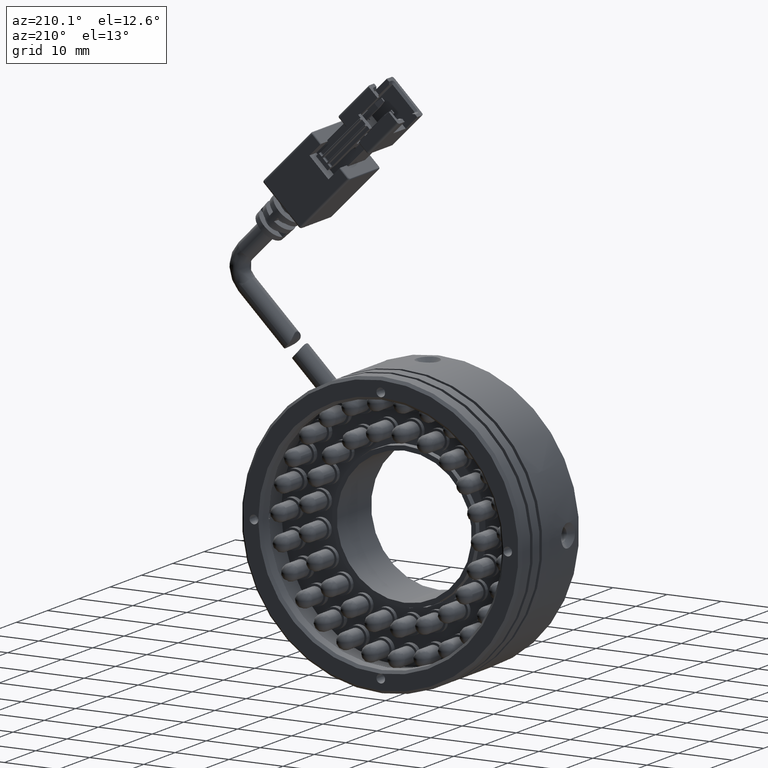
[diagram: clean part render]
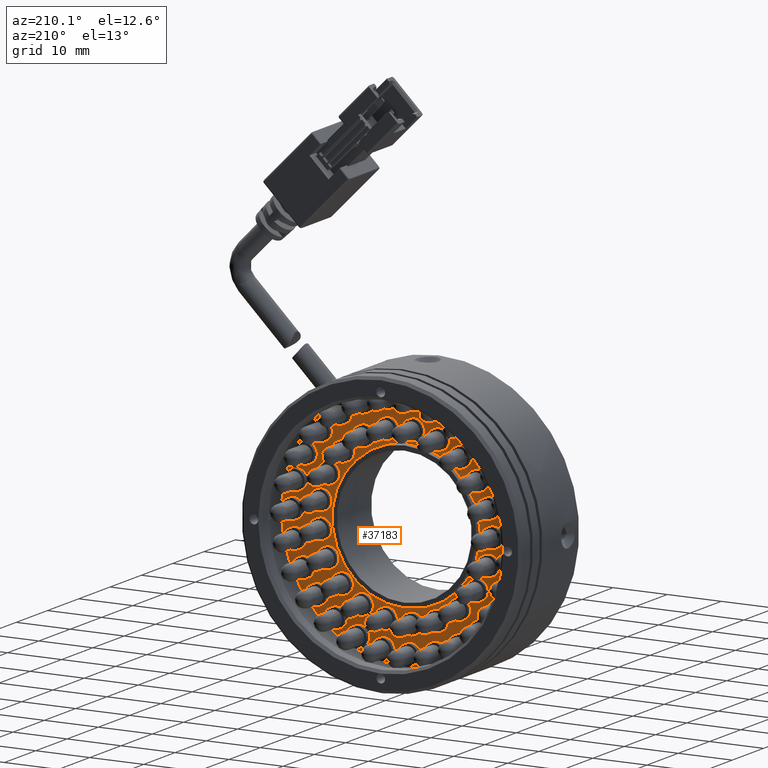
[diagram: same view with one face highlighted and labeled with its STEP entity id]
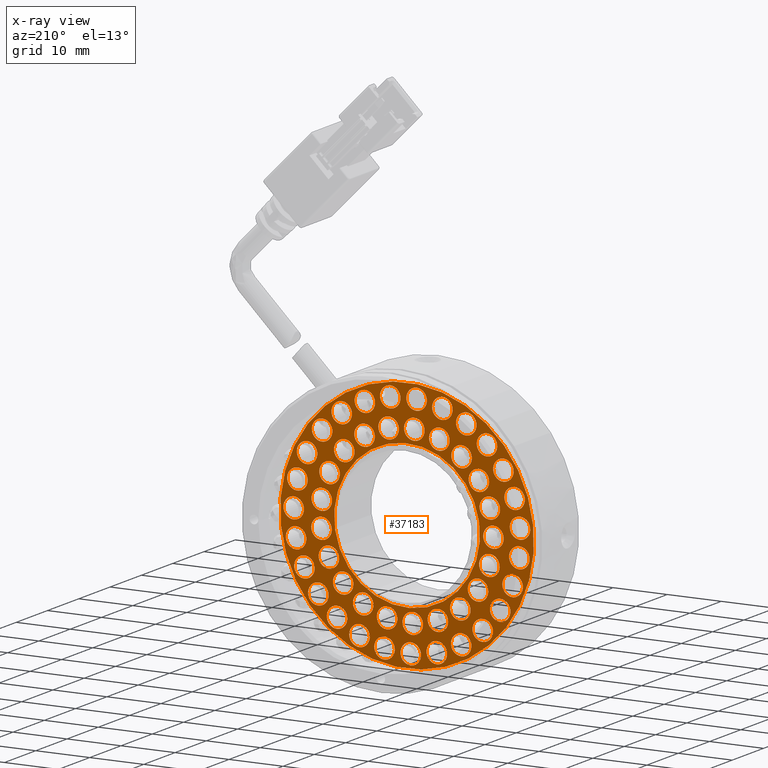
[diagram: x-ray of the same camera — body ghosted, the highlighted face saturated]
A machine part, auxiliary view. The second image highlights one B-rep face of the part: STEP entity #37183.
The next image is the same camera in x-ray: the body ghosted, the highlighted face saturated — about 0% of this face is hidden behind the body in this view.
In plain terms, the highlighted planar face has unit normal (0, -1, -0).
Its self-contained STEP definition (entity closure, byte-faithful):
#203 = VERTEX_POINT ( 'NONE', #29894 ) ;
#281 = CARTESIAN_POINT ( 'NONE',  ( -12.82583007538000800, 4.580076170238128500, 12.25876462700172600 ) ) ;
#402 = EDGE_LOOP ( 'NONE', ( #23120, #22026 ) ) ;
#451 = CARTESIAN_POINT ( 'NONE',  ( 2.858924020900958800, 4.580076170238128500, -15.56579608146221700 ) ) ;
#476 = AXIS2_PLACEMENT_3D ( 'NONE', #4684, #29787, #8294 ) ;
#492 = DIRECTION ( 'NONE',  ( -0.9964823369000799200, 0.0000000000000000000, -0.08380305630557588500 ) ) ;
#585 = EDGE_CURVE ( 'NONE', #14737, #29604, #37823, .T. ) ;
#588 = CIRCLE ( 'NONE', #45498, 1.899999999999999500 ) ;
#686 = FACE_BOUND ( 'NONE', #4991, .T. ) ;
#729 = CARTESIAN_POINT ( 'NONE',  ( -5.488244330130715600, 4.580076170238128500, 20.11543575358837200 ) ) ;
#786 = CARTESIAN_POINT ( 'NONE',  ( 0.9656075807898153500, 4.580076170238128500, -15.72502188844289400 ) ) ;
#806 = DIRECTION ( 'NONE',  ( -0.9964823369000801500, 0.0000000000000000000, -0.08380305630557492700 ) ) ;
#842 = EDGE_CURVE ( 'NONE', #41750, #12028, #3867, .T. ) ;
#895 = CARTESIAN_POINT ( 'NONE',  ( -14.85665910701733800, 4.580076170238128500, -15.64045990965148100 ) ) ;
#900 = ORIENTED_EDGE ( 'NONE', *, *, #31032, .F. ) ;
#938 = EDGE_CURVE ( 'NONE', #25974, #14959, #33067, .T. ) ;
#978 = VERTEX_POINT ( 'NONE', #21184 ) ;
#1062 = AXIS2_PLACEMENT_3D ( 'NONE', #6907, #32035, #10559 ) ;
#1068 = CARTESIAN_POINT ( 'NONE',  ( -16.78617151896034800, 4.580076170238128500, 11.24381569832448100 ) ) ;
#1082 = CIRCLE ( 'NONE', #3238, 1.900000000000337900 ) ;
#1154 = CARTESIAN_POINT ( 'NONE',  ( -12.59812302789431900, 4.580076170238128500, -12.75880655179475200 ) ) ;
#1163 = CARTESIAN_POINT ( 'NONE',  ( 9.366369393606577300, 4.580076170238128500, 17.00233797802635400 ) ) ;
#1198 = EDGE_CURVE ( 'NONE', #9426, #35210, #7734, .T. ) ;
#1278 = CARTESIAN_POINT ( 'NONE',  ( -19.86373139835104200, 4.580076170238128500, 2.059882095368000200 ) ) ;
#1363 = CIRCLE ( 'NONE', #8977, 1.900000000001288200 ) ;
#1379 = CARTESIAN_POINT ( 'NONE',  ( 19.56774214096332200, 4.580076170238128500, 10.06357775328904200 ) ) ;
#1467 = DIRECTION ( 'NONE',  ( -1.152656876524891300E-021, 1.000000000000000000, 9.025018899253366500E-022 ) ) ;
#1517 = CARTESIAN_POINT ( 'NONE',  ( 11.74153582443478800, 4.580076170238128500, -6.969875291375244000 ) ) ;
#1655 = EDGE_LOOP ( 'NONE', ( #23143, #24848 ) ) ;
#1661 = ORIENTED_EDGE ( 'NONE', *, *, #34878, .F. ) ;
#1805 = FACE_BOUND ( 'NONE', #15275, .T. ) ;
#1810 = CARTESIAN_POINT ( 'NONE',  ( -14.85665910701733800, 4.580076170238128500, -15.64045990965148100 ) ) ;
#1831 = VERTEX_POINT ( 'NONE', #32192 ) ;
#1970 = DIRECTION ( 'NONE',  ( -0.9964823369000801500, 0.0000000000000000000, -0.08380305630557496900 ) ) ;
#1999 = AXIS2_PLACEMENT_3D ( 'NONE', #33156, #11680, #36704 ) ;
#2052 = CARTESIAN_POINT ( 'NONE',  ( 12.99786253194685600, 4.580076170238128500, 13.74861983799311300 ) ) ;
#2118 = VERTEX_POINT ( 'NONE', #45441 ) ;
#2404 = CARTESIAN_POINT ( 'NONE',  ( -13.98047631714871900, 4.580076170238128500, -9.133067906006788300 ) ) ;
#2417 = CARTESIAN_POINT ( 'NONE',  ( 6.975721020895298000, 4.580076170238128500, 19.49009757928529800 ) ) ;
#2472 = VERTEX_POINT ( 'NONE', #37604 ) ;
#2497 = AXIS2_PLACEMENT_3D ( 'NONE', #8159, #18895, #6293 ) ;
#2522 = ORIENTED_EDGE ( 'NONE', *, *, #40165, .F. ) ;
#2546 = CARTESIAN_POINT ( 'NONE',  ( 14.95569728229732400, 4.580076170238128500, 2.528575108112641100 ) ) ;
#2636 = CARTESIAN_POINT ( 'NONE',  ( 15.40180082692030400, 4.580076170238128500, 7.232280893333918200 ) ) ;
#2638 = CARTESIAN_POINT ( 'NONE',  ( -8.446209517375850200, 4.580076170238128500, -15.10579134907595900 ) ) ;
#2640 = EDGE_LOOP ( 'NONE', ( #4166, #22140 ) ) ;
#2663 = CARTESIAN_POINT ( 'NONE',  ( 0.6816615369522077700, 4.580076170238128500, 15.47137910606677400 ) ) ;
#2878 = DIRECTION ( 'NONE',  ( -1.152656876524891300E-021, 1.000000000000000000, 9.025018899253366500E-022 ) ) ;
#2956 = FACE_BOUND ( 'NONE', #28462, .T. ) ;
#2960 = DIRECTION ( 'NONE',  ( 1.152656876524891300E-021, -1.000000000000000000, -9.025018899253366500E-022 ) ) ;
#3060 = CARTESIAN_POINT ( 'NONE',  ( -8.239979196505563800, 4.580076170238128500, -20.42526388018332300 ) ) ;
#3091 = CARTESIAN_POINT ( 'NONE',  ( 7.282546356297083400, 4.580076170238128500, -13.78302047267673200 ) ) ;
#3146 = ORIENTED_EDGE ( 'NONE', *, *, #41665, .F. ) ;
#3182 = VERTEX_POINT ( 'NONE', #19864 ) ;
#3193 = DIRECTION ( 'NONE',  ( -0.9964823369000801500, 0.0000000000000000000, -0.08380305630557502400 ) ) ;
#3238 = AXIS2_PLACEMENT_3D ( 'NONE', #31657, #10182, #35264 ) ;
#3246 = EDGE_LOOP ( 'NONE', ( #41083, #28769 ) ) ;
#3337 = EDGE_LOOP ( 'NONE', ( #37839, #3638 ) ) ;
#3381 = VERTEX_POINT ( 'NONE', #20324 ) ;
#3382 = EDGE_CURVE ( 'NONE', #4769, #35756, #33106, .T. ) ;
#3434 = CARTESIAN_POINT ( 'NONE',  ( 0.3769177454027842800, 4.580076170238128500, 20.60868936125990600 ) ) ;
#3481 = CIRCLE ( 'NONE', #5378, 1.899999999999999200 ) ;
#3504 = CARTESIAN_POINT ( 'NONE',  ( -6.824008423269229500, 4.580076170238128500, 14.84016060976678600 ) ) ;
#3638 = ORIENTED_EDGE ( 'NONE', *, *, #12917, .F. ) ;
#3677 = VERTEX_POINT ( 'NONE', #16868 ) ;
#3723 = EDGE_CURVE ( 'NONE', #20168, #36780, #14016, .T. ) ;
#3731 = EDGE_CURVE ( 'NONE', #40816, #46551, #4407, .T. ) ;
#3760 = VERTEX_POINT ( 'NONE', #28536 ) ;
#3835 = CARTESIAN_POINT ( 'NONE',  ( 17.67442570085188800, 4.580076170238128500, 9.904351946308342000 ) ) ;
#3867 = CIRCLE ( 'NONE', #28177, 1.900000000000000100 ) ;
#3895 = CIRCLE ( 'NONE', #20487, 1.900000000000762900 ) ;
#3918 = VERTEX_POINT ( 'NONE', #45714 ) ;
#3945 = EDGE_CURVE ( 'NONE', #35756, #4769, #30193, .T. ) ;
#3980 = VERTEX_POINT ( 'NONE', #37673 ) ;
#4001 = ORIENTED_EDGE ( 'NONE', *, *, #4283, .F. ) ;
#4068 = CIRCLE ( 'NONE', #40163, 1.899999999999999500 ) ;
#4105 = DIRECTION ( 'NONE',  ( -0.9964823369000799200, 0.0000000000000000000, -0.08380305630557580200 ) ) ;
#4118 = FACE_BOUND ( 'NONE', #1655, .T. ) ;
#4119 = AXIS2_PLACEMENT_3D ( 'NONE', #42295, #20785, #45864 ) ;
#4166 = ORIENTED_EDGE ( 'NONE', *, *, #46662, .F. ) ;
#4203 = EDGE_LOOP ( 'NONE', ( #16042, #27245 ) ) ;
#4211 = EDGE_CURVE ( 'NONE', #30090, #44505, #9974, .T. ) ;
#4215 = EDGE_CURVE ( 'NONE', #5807, #2118, #20669, .T. ) ;
#4260 = DIRECTION ( 'NONE',  ( -1.152656876524891300E-021, 1.000000000000000000, 9.025018899253366500E-022 ) ) ;
#4269 = ORIENTED_EDGE ( 'NONE', *, *, #45833, .F. ) ;
#4283 = EDGE_CURVE ( 'NONE', #39255, #978, #36296, .T. ) ;
#4353 = EDGE_CURVE ( 'NONE', #17232, #27556, #34070, .T. ) ;
#4362 = DIRECTION ( 'NONE',  ( -1.152656876524891300E-021, 1.000000000000000000, 9.025018899253366500E-022 ) ) ;
#4391 = VERTEX_POINT ( 'NONE', #36550 ) ;
#4407 = CIRCLE ( 'NONE', #17317, 1.900000000001690600 ) ;
#4467 = DIRECTION ( 'NONE',  ( -1.152656876524891300E-021, 1.000000000000000000, 9.025018899253366500E-022 ) ) ;
#4508 = VERTEX_POINT ( 'NONE', #24530 ) ;
#4553 = DIRECTION ( 'NONE',  ( -0.9964823369000800300, 0.0000000000000000000, -0.08380305630557556600 ) ) ;
#4580 = ORIENTED_EDGE ( 'NONE', *, *, #27926, .F. ) ;
#4657 = ORIENTED_EDGE ( 'NONE', *, *, #938, .F. ) ;
#4684 = CARTESIAN_POINT ( 'NONE',  ( 7.030317976951647700, 4.580076170238128500, 13.92864459538932900 ) ) ;
#4691 = VERTEX_POINT ( 'NONE', #2636 ) ;
#4701 = VERTEX_POINT ( 'NONE', #1068 ) ;
#4702 = CARTESIAN_POINT ( 'NONE',  ( 7.967652574504900700, 4.580076170238128500, -19.06222007339512100 ) ) ;
#4769 = VERTEX_POINT ( 'NONE', #26563 ) ;
#4771 = EDGE_LOOP ( 'NONE', ( #38784, #32090 ) ) ;
#4780 = CARTESIAN_POINT ( 'NONE',  ( 17.81519400690713100, 4.580076170238128500, -4.474975843937895300 ) ) ;
#4822 = EDGE_CURVE ( 'NONE', #3677, #7074, #28689, .T. ) ;
#4847 = EDGE_CURVE ( 'NONE', #7041, #9370, #9637, .T. ) ;
#4874 = AXIS2_PLACEMENT_3D ( 'NONE', #36420, #15016, #40086 ) ;
#4991 = EDGE_LOOP ( 'NONE', ( #4269, #44738 ) ) ;
#5044 = VERTEX_POINT ( 'NONE', #14073 ) ;
#5125 = AXIS2_PLACEMENT_3D ( 'NONE', #13550, #38600, #17154 ) ;
#5151 = EDGE_CURVE ( 'NONE', #46551, #40816, #33706, .T. ) ;
#5223 = EDGE_CURVE ( 'NONE', #38424, #10197, #8976, .T. ) ;
#5233 = FACE_BOUND ( 'NONE', #25202, .T. ) ;
#5378 = AXIS2_PLACEMENT_3D ( 'NONE', #13319, #38367, #16946 ) ;
#5447 = CIRCLE ( 'NONE', #44141, 1.900000000000999300 ) ;
#5453 = CARTESIAN_POINT ( 'NONE',  ( -6.346662756393540900, 4.580076170238128500, -20.26603807320257600 ) ) ;
#5483 = DIRECTION ( 'NONE',  ( -0.9964823369000800300, 0.0000000000000000000, -0.08380305630557556600 ) ) ;
#5488 = VERTEX_POINT ( 'NONE', #31402 ) ;
#5629 = EDGE_LOOP ( 'NONE', ( #9884, #2522 ) ) ;
#5735 = EDGE_CURVE ( 'NONE', #44550, #45682, #6701, .T. ) ;
#5744 = DIRECTION ( 'NONE',  ( -1.152656876524891300E-021, 1.000000000000000000, 9.025018899253366500E-022 ) ) ;
#5748 = CARTESIAN_POINT ( 'NONE',  ( 9.860969014617230900, 4.580076170238128500, -18.90299426641434600 ) ) ;
#5749 = CARTESIAN_POINT ( 'NONE',  ( 15.58557031146039600, 4.580076170238128500, -13.08030227157525300 ) ) ;
#5785 = FACE_BOUND ( 'NONE', #8317, .T. ) ;
#5789 = CARTESIAN_POINT ( 'NONE',  ( -0.7097842190522906100, 4.580076170238128500, 21.08535488188228900 ) ) ;
#5807 = VERTEX_POINT ( 'NONE', #1154 ) ;
#5833 = AXIS2_PLACEMENT_3D ( 'NONE', #4702, #29807, #8313 ) ;
#5862 = EDGE_LOOP ( 'NONE', ( #39674, #44804 ) ) ;
#5888 = CIRCLE ( 'NONE', #42679, 1.900000000001897700 ) ;
#6077 = DIRECTION ( 'NONE',  ( -0.9964823369000800300, 0.0000000000000000000, -0.08380305630557484400 ) ) ;
#6092 = DIRECTION ( 'NONE',  ( -0.9964823369000800300, 0.0000000000000000000, -0.08380305630557528800 ) ) ;
#6169 = CARTESIAN_POINT ( 'NONE',  ( -0.8432364767453662800, 4.580076170238128500, 1.316013914325325100E-014 ) ) ;
#6219 = DIRECTION ( 'NONE',  ( -0.9964823369000800300, 0.0000000000000000000, -0.08380305630557510800 ) ) ;
#6293 = DIRECTION ( 'NONE',  ( -0.9964823369000799200, 0.0000000000000000000, -0.08380305630557533000 ) ) ;
#6337 = AXIS2_PLACEMENT_3D ( 'NONE', #32375, #10890, #35944 ) ;
#6359 = VERTEX_POINT ( 'NONE', #15364 ) ;
#6387 = FACE_BOUND ( 'NONE', #39682, .T. ) ;
#6401 = ORIENTED_EDGE ( 'NONE', *, *, #13601, .F. ) ;
#6426 = VERTEX_POINT ( 'NONE', #4780 ) ;
#6614 = VERTEX_POINT ( 'NONE', #41866 ) ;
#6652 = CARTESIAN_POINT ( 'NONE',  ( 13.63485226454583800, 4.580076170238128500, -6.810649484394575700 ) ) ;
#6701 = CIRCLE ( 'NONE', #28103, 1.900000000000943600 ) ;
#6728 = DIRECTION ( 'NONE',  ( -0.9964823369000800300, 0.0000000000000000000, -0.08380305630557470500 ) ) ;
#6785 = DIRECTION ( 'NONE',  ( 1.152656876524891500E-021, -1.000000000000000000, -9.025018899253368400E-022 ) ) ;
#6855 = ORIENTED_EDGE ( 'NONE', *, *, #44235, .F. ) ;
#6859 = DIRECTION ( 'NONE',  ( -1.152656876524891300E-021, 1.000000000000000000, 9.025018899253366500E-022 ) ) ;
#6907 = CARTESIAN_POINT ( 'NONE',  ( 3.334103439311888500, 4.580076170238128500, -20.58032631485016500 ) ) ;
#6913 = FACE_BOUND ( 'NONE', #27610, .T. ) ;
#6987 = CARTESIAN_POINT ( 'NONE',  ( -17.98216107497735900, 4.580076170238128500, -5.014267710923050500 ) ) ;
#7030 = CARTESIAN_POINT ( 'NONE',  ( -4.453346316281519000, 4.580076170238128500, -20.10681226622182600 ) ) ;
#7041 = VERTEX_POINT ( 'NONE', #36879 ) ;
#7074 = VERTEX_POINT ( 'NONE', #26080 ) ;
#7128 = DIRECTION ( 'NONE',  ( -0.9964823369000801500, 0.0000000000000000000, -0.08380305630557502400 ) ) ;
#7197 = CARTESIAN_POINT ( 'NONE',  ( -24.26057139389725100, 4.580076170238128500, -1.969371823181000900 ) ) ;
#7265 = ORIENTED_EDGE ( 'NONE', *, *, #45344, .F. ) ;
#7312 = EDGE_CURVE ( 'NONE', #4508, #4701, #17351, .T. ) ;
#7394 = CIRCLE ( 'NONE', #35183, 1.900000000001876900 ) ;
#7436 = DIRECTION ( 'NONE',  ( -0.9964823369000801500, 0.0000000000000000000, -0.08380305630557474700 ) ) ;
#7675 = EDGE_CURVE ( 'NONE', #36299, #6359, #5447, .T. ) ;
#7707 = ORIENTED_EDGE ( 'NONE', *, *, #45276, .F. ) ;
#7724 = CARTESIAN_POINT ( 'NONE',  ( -16.84257376348630000, 4.580076170238128500, -0.1456241227123093500 ) ) ;
#7734 = CIRCLE ( 'NONE', #25849, 1.900000000000454700 ) ;
#7750 = EDGE_LOOP ( 'NONE', ( #20126, #22859 ) ) ;
#7790 = CARTESIAN_POINT ( 'NONE',  ( -20.75499184160895900, 4.580076170238128500, 6.672480669875742600 ) ) ;
#7861 = ORIENTED_EDGE ( 'NONE', *, *, #38385, .F. ) ;
#7884 = DIRECTION ( 'NONE',  ( -1.152656876524891300E-021, 1.000000000000000000, 9.025018899253366500E-022 ) ) ;
#7901 = EDGE_CURVE ( 'NONE', #6359, #36299, #21167, .T. ) ;
#7941 = CARTESIAN_POINT ( 'NONE',  ( -18.06800800235408000, 4.580076170238128500, 4.417507193901118800 ) ) ;
#7961 = CIRCLE ( 'NONE', #20028, 1.900000000000820100 ) ;
#7962 = CIRCLE ( 'NONE', #17542, 1.900000000000000100 ) ;
#7982 = EDGE_CURVE ( 'NONE', #43410, #3760, #25061, .T. ) ;
#8009 = CARTESIAN_POINT ( 'NONE',  ( -6.552893077264838200, 4.580076170238128500, -14.94656554209529500 ) ) ;
#8015 = FACE_BOUND ( 'NONE', #39477, .T. ) ;
#8106 = EDGE_CURVE ( 'NONE', #17709, #38381, #28346, .T. ) ;
#8159 = CARTESIAN_POINT ( 'NONE',  ( -10.70480658778343400, 4.580076170238128500, -12.59958074481409600 ) ) ;
#8294 = DIRECTION ( 'NONE',  ( -0.9964823369000800300, 0.0000000000000000000, -0.08380305630557498300 ) ) ;
#8313 = DIRECTION ( 'NONE',  ( -0.9964823369000800300, 0.0000000000000000000, -0.08380305630557528800 ) ) ;
#8317 = EDGE_LOOP ( 'NONE', ( #6855, #29835 ) ) ;
#8438 = CARTESIAN_POINT ( 'NONE',  ( -21.63163485146611000, 4.580076170238128500, -2.973632965574531300 ) ) ;
#8564 = CARTESIAN_POINT ( 'NONE',  ( 17.67442570085188800, 4.580076170238128500, 9.904351946308342000 ) ) ;
#8820 = DIRECTION ( 'NONE',  ( -1.152656876524891300E-021, 1.000000000000000000, 9.025018899253366500E-022 ) ) ;
#8884 = CARTESIAN_POINT ( 'NONE',  ( -14.14454229567203200, 4.580076170238128500, 8.892427312685097000 ) ) ;
#8893 = CARTESIAN_POINT ( 'NONE',  ( -1.893651521374830200, 4.580076170238128500, -15.96548239903880500 ) ) ;
#8976 = CIRCLE ( 'NONE', #5833, 1.900000000002186600 ) ;
#8977 = AXIS2_PLACEMENT_3D ( 'NONE', #8564, #33694, #12231 ) ;
#8981 = CARTESIAN_POINT ( 'NONE',  ( -6.552893077264838200, 4.580076170238128500, -14.94656554209529500 ) ) ;
#9054 = DIRECTION ( 'NONE',  ( -0.9964823369000800300, 0.0000000000000000000, -0.08380305630557434400 ) ) ;
#9062 = AXIS2_PLACEMENT_3D ( 'NONE', #8981, #34089, #12647 ) ;
#9126 = ORIENTED_EDGE ( 'NONE', *, *, #17807, .F. ) ;
#9141 = DIRECTION ( 'NONE',  ( -0.9964823369000800300, 0.0000000000000000000, -0.08380305630557509400 ) ) ;
#9160 = FACE_BOUND ( 'NONE', #33464, .T. ) ;
#9354 = DIRECTION ( 'NONE',  ( -0.9964823369000800300, 0.0000000000000000000, -0.08380305630557509400 ) ) ;
#9370 = VERTEX_POINT ( 'NONE', #36779 ) ;
#9390 = CARTESIAN_POINT ( 'NONE',  ( 13.50848438680959500, 4.580076170238128500, 7.073055086353277500 ) ) ;
#9426 = VERTEX_POINT ( 'NONE', #44358 ) ;
#9433 = AXIS2_PLACEMENT_3D ( 'NONE', #15124, #40186, #18700 ) ;
#9436 = CARTESIAN_POINT ( 'NONE',  ( -16.17469156224373700, 4.580076170238128500, 4.576733000881727500 ) ) ;
#9476 = DIRECTION ( 'NONE',  ( -1.152656876524891300E-021, 1.000000000000000000, 9.025018899253366500E-022 ) ) ;
#9492 = ORIENTED_EDGE ( 'NONE', *, *, #9944, .F. ) ;
#9516 = CIRCLE ( 'NONE', #6337, 1.899999999999998400 ) ;
#9551 = EDGE_CURVE ( 'NONE', #46295, #40605, #23510, .T. ) ;
#9564 = AXIS2_PLACEMENT_3D ( 'NONE', #6169, #31268, #9772 ) ;
#9597 = DIRECTION ( 'NONE',  ( -0.9964823369000799200, 0.0000000000000000000, -0.08380305630557492700 ) ) ;
#9637 = CIRCLE ( 'NONE', #23066, 1.900000000001709900 ) ;
#9664 = EDGE_LOOP ( 'NONE', ( #4657, #6401 ) ) ;
#9716 = VERTEX_POINT ( 'NONE', #38848 ) ;
#9724 = EDGE_CURVE ( 'NONE', #24683, #22698, #29016, .T. ) ;
#9738 = VERTEX_POINT ( 'NONE', #43122 ) ;
#9772 = DIRECTION ( 'NONE',  ( -0.9964823369000800300, 0.0000000000000000000, -0.08380305630557505200 ) ) ;
#9857 = CARTESIAN_POINT ( 'NONE',  ( -23.52495129157702200, 4.580076170238128500, -3.132858772555188000 ) ) ;
#9884 = ORIENTED_EDGE ( 'NONE', *, *, #7312, .F. ) ;
#9944 = EDGE_CURVE ( 'NONE', #9370, #7041, #32968, .T. ) ;
#9955 = CARTESIAN_POINT ( 'NONE',  ( 10.98415722756673300, 4.580076170238128500, -10.77556300910483400 ) ) ;
#9974 = CIRCLE ( 'NONE', #41988, 1.900000000001511400 ) ;
#9979 = DIRECTION ( 'NONE',  ( -1.152656876524891300E-021, 1.000000000000000000, 9.025018899253366500E-022 ) ) ;
#10031 = DIRECTION ( 'NONE',  ( -1.152656876524891300E-021, 1.000000000000000000, 9.025018899253366500E-022 ) ) ;
#10078 = AXIS2_PLACEMENT_3D ( 'NONE', #28380, #28072, #27925 ) ;
#10094 = CARTESIAN_POINT ( 'NONE',  ( 12.12620440033161100, 4.580076170238128500, -16.51646461371153400 ) ) ;
#10182 = DIRECTION ( 'NONE',  ( -1.152656876524891300E-021, 1.000000000000000000, 9.025018899253366500E-022 ) ) ;
#10197 = VERTEX_POINT ( 'NONE', #12829 ) ;
#10258 = CARTESIAN_POINT ( 'NONE',  ( 9.090840787455613600, 4.580076170238128500, -10.93478881608550800 ) ) ;
#10287 = DIRECTION ( 'NONE',  ( -0.9964823369000801500, 0.0000000000000000000, -0.08380305630557496900 ) ) ;
#10324 = FACE_BOUND ( 'NONE', #5629, .T. ) ;
#10336 = ORIENTED_EDGE ( 'NONE', *, *, #12506, .F. ) ;
#10349 = AXIS2_PLACEMENT_3D ( 'NONE', #10094, #35163, #13735 ) ;
#10416 = DIRECTION ( 'NONE',  ( -1.152656876524891300E-021, 1.000000000000000000, 9.025018899253366500E-022 ) ) ;
#10426 = ORIENTED_EDGE ( 'NONE', *, *, #19229, .F. ) ;
#10485 = CIRCLE ( 'NONE', #32247, 1.900000000000943600 ) ;
#10506 = EDGE_LOOP ( 'NONE', ( #15729, #19686 ) ) ;
#10559 = DIRECTION ( 'NONE',  ( -0.9964823369000799200, 0.0000000000000000000, -0.08380305630557588500 ) ) ;
#10609 = CARTESIAN_POINT ( 'NONE',  ( 19.45938046853316500, 4.580076170238128500, 5.366912070571443000 ) ) ;
#10664 = CIRCLE ( 'NONE', #28155, 1.900000000000602500 ) ;
#10743 = CARTESIAN_POINT ( 'NONE',  ( 10.23288796021928000, 4.580076170238128500, -16.67569042069231200 ) ) ;
#10747 = CARTESIAN_POINT ( 'NONE',  ( -0.8432364767453662800, 4.580076170238128500, 1.316013914325325100E-014 ) ) ;
#10779 = AXIS2_PLACEMENT_3D ( 'NONE', #35915, #14487, #39568 ) ;
#10800 = EDGE_LOOP ( 'NONE', ( #39257, #43073 ) ) ;
#10890 = DIRECTION ( 'NONE',  ( -1.152656876524891300E-021, 1.000000000000000000, 9.025018899253366500E-022 ) ) ;
#10905 = DIRECTION ( 'NONE',  ( -1.152656876524891300E-021, 1.000000000000000000, 9.025018899253366500E-022 ) ) ;
#11018 = ORIENTED_EDGE ( 'NONE', *, *, #17520, .F. ) ;
#11144 = AXIS2_PLACEMENT_3D ( 'NONE', #15189, #40250, #18760 ) ;
#11200 = EDGE_CURVE ( 'NONE', #40116, #9716, #18289, .T. ) ;
#11244 = AXIS2_PLACEMENT_3D ( 'NONE', #11873, #36921, #15505 ) ;
#11261 = VERTEX_POINT ( 'NONE', #41804 ) ;
#11264 = EDGE_CURVE ( 'NONE', #39579, #24929, #33938, .T. ) ;
#11320 = VERTEX_POINT ( 'NONE', #2638 ) ;
#11373 = DIRECTION ( 'NONE',  ( -0.9964823369000801500, 0.0000000000000000000, -0.08380305630557509400 ) ) ;
#11438 = DIRECTION ( 'NONE',  ( -0.9964823369000800300, 0.0000000000000000000, -0.08380305630557510800 ) ) ;
#11447 = FACE_BOUND ( 'NONE', #44715, .T. ) ;
#11677 = DIRECTION ( 'NONE',  ( -0.9964823369000800300, 0.0000000000000000000, -0.08380305630557524600 ) ) ;
#11680 = DIRECTION ( 'NONE',  ( -1.152656876524891300E-021, 1.000000000000000000, 9.025018899253366500E-022 ) ) ;
#11860 = AXIS2_PLACEMENT_3D ( 'NONE', #9390, #34466, #13069 ) ;
#11873 = CARTESIAN_POINT ( 'NONE',  ( -2.603100659162442400, 4.580076170238128500, 20.92612907490169900 ) ) ;
#11897 = CARTESIAN_POINT ( 'NONE',  ( -14.94925732337582900, 4.580076170238128500, 0.01360168426831008500 ) ) ;
#11952 = DIRECTION ( 'NONE',  ( -1.152656876524891300E-021, 1.000000000000000000, 9.025018899253366500E-022 ) ) ;
#11953 = DIRECTION ( 'NONE',  ( 1.152656876524891300E-021, -1.000000000000000000, -9.025018899253366500E-022 ) ) ;
#12028 = VERTEX_POINT ( 'NONE', #18957 ) ;
#12029 = DIRECTION ( 'NONE',  ( -1.152656876524891300E-021, 1.000000000000000000, 9.025018899253366500E-022 ) ) ;
#12094 = DIRECTION ( 'NONE',  ( -0.9964823369000800300, 0.0000000000000000000, -0.08380305630557508000 ) ) ;
#12107 = CIRCLE ( 'NONE', #22798, 1.899999999999998400 ) ;
#12142 = CARTESIAN_POINT ( 'NONE',  ( -4.077401817744719100, 4.580076170238128500, 15.78449158342070100 ) ) ;
#12231 = DIRECTION ( 'NONE',  ( -0.9964823369000801500, 0.0000000000000000000, -0.08380305630557474700 ) ) ;
#12232 = CARTESIAN_POINT ( 'NONE',  ( 14.95569728229732400, 4.580076170238128500, 2.528575108112641100 ) ) ;
#12321 = AXIS2_PLACEMENT_3D ( 'NONE', #14781, #39868, #18381 ) ;
#12324 = DIRECTION ( 'NONE',  ( -1.152656876524891300E-021, 1.000000000000000000, 9.025018899253366500E-022 ) ) ;
#12363 = CIRCLE ( 'NONE', #42335, 1.900000000002129100 ) ;
#12395 = EDGE_LOOP ( 'NONE', ( #9492, #46508 ) ) ;
#12445 = DIRECTION ( 'NONE',  ( -1.152656876524891300E-021, 1.000000000000000000, 9.025018899253366500E-022 ) ) ;
#12470 = AXIS2_PLACEMENT_3D ( 'NONE', #2546, #27690, #6219 ) ;
#12506 = EDGE_CURVE ( 'NONE', #25823, #23582, #41114, .T. ) ;
#12537 = DIRECTION ( 'NONE',  ( -0.9964823369000801500, 0.0000000000000000000, -0.08380305630557494100 ) ) ;
#12549 = DIRECTION ( 'NONE',  ( -0.9964823369000801500, 0.0000000000000000000, -0.08380305630557533000 ) ) ;
#12586 = FACE_BOUND ( 'NONE', #16747, .T. ) ;
#12638 = CARTESIAN_POINT ( 'NONE',  ( 7.030317976951647700, 4.580076170238128500, 13.92864459538932900 ) ) ;
#12647 = DIRECTION ( 'NONE',  ( -0.9964823369000800300, 0.0000000000000000000, -0.08380305630557524600 ) ) ;
#12743 = CIRCLE ( 'NONE', #12321, 1.900000000000177500 ) ;
#12771 = ORIENTED_EDGE ( 'NONE', *, *, #35895, .F. ) ;
#12829 = CARTESIAN_POINT ( 'NONE',  ( 6.074336134392569700, 4.580076170238128500, -19.22144588037589600 ) ) ;
#12858 = EDGE_LOOP ( 'NONE', ( #18333, #26811 ) ) ;
#12866 = EDGE_LOOP ( 'NONE', ( #25447, #10336 ) ) ;
#12901 = EDGE_CURVE ( 'NONE', #3760, #43410, #29744, .T. ) ;
#12909 = CARTESIAN_POINT ( 'NONE',  ( 5.389229916185935400, 4.580076170238128500, -13.94224627965740900 ) ) ;
#12917 = EDGE_CURVE ( 'NONE', #45239, #20558, #22504, .T. ) ;
#12950 = CARTESIAN_POINT ( 'NONE',  ( 2.270234185513430300, 4.580076170238128500, 20.76791516824054200 ) ) ;
#12996 = DIRECTION ( 'NONE',  ( -1.152656876524891300E-021, 1.000000000000000000, 9.025018899253366500E-022 ) ) ;
#13012 = CIRCLE ( 'NONE', #23591, 1.900000000000317000 ) ;
#13069 = DIRECTION ( 'NONE',  ( -0.9964823369000799200, 0.0000000000000000000, -0.08380305630557495500 ) ) ;
#13108 = DIRECTION ( 'NONE',  ( -0.9964823369000800300, 0.0000000000000000000, -0.08380305630557517700 ) ) ;
#13148 = EDGE_CURVE ( 'NONE', #10197, #38424, #17444, .T. ) ;
#13241 = CARTESIAN_POINT ( 'NONE',  ( -21.75704783846173000, 4.580076170238128500, 1.900656288387362600 ) ) ;
#13288 = DIRECTION ( 'NONE',  ( -1.152656876524891300E-021, 1.000000000000000000, 9.025018899253366500E-022 ) ) ;
#13307 = AXIS2_PLACEMENT_3D ( 'NONE', #43574, #22069, #492 ) ;
#13319 = CARTESIAN_POINT ( 'NONE',  ( 2.574977977062359100, 4.580076170238128500, 15.63060491304736600 ) ) ;
#13355 = DIRECTION ( 'NONE',  ( -1.152656876524891300E-021, 1.000000000000000000, 9.025018899253366500E-022 ) ) ;
#13550 = CARTESIAN_POINT ( 'NONE',  ( -18.08586376727523500, 4.580076170238128500, -11.98715162663398600 ) ) ;
#13589 = ORIENTED_EDGE ( 'NONE', *, *, #21305, .F. ) ;
#13601 = EDGE_CURVE ( 'NONE', #14959, #25974, #30210, .T. ) ;
#13674 = EDGE_LOOP ( 'NONE', ( #16730, #37986 ) ) ;
#13721 = VERTEX_POINT ( 'NONE', #14738 ) ;
#13735 = DIRECTION ( 'NONE',  ( -0.9964823369000800300, 0.0000000000000000000, -0.08380305630557528800 ) ) ;
#13741 = FACE_BOUND ( 'NONE', #4771, .T. ) ;
#13872 = CARTESIAN_POINT ( 'NONE',  ( -18.73589020359676700, 4.580076170238128500, -0.3048499296929285700 ) ) ;
#13880 = CARTESIAN_POINT ( 'NONE',  ( -13.74911070226845300, 4.580076170238128500, 15.05835180961108900 ) ) ;
#14005 = DIRECTION ( 'NONE',  ( -1.152656876524891300E-021, 1.000000000000000000, 9.025018899253366500E-022 ) ) ;
#14016 = CIRCLE ( 'NONE', #10078, 1.900000000000654700 ) ;
#14069 = CARTESIAN_POINT ( 'NONE',  ( 14.99910558081523800, 4.580076170238128500, -2.240579864952898100 ) ) ;
#14073 = CARTESIAN_POINT ( 'NONE',  ( -14.19552819475613800, 4.580076170238128500, -4.695816096961787700 ) ) ;
#14098 = CIRCLE ( 'NONE', #25184, 1.900000000000736700 ) ;
#14143 = AXIS2_PLACEMENT_3D ( 'NONE', #38762, #17311, #42415 ) ;
#14155 = CARTESIAN_POINT ( 'NONE',  ( -18.49219748710184100, 4.580076170238128500, -7.528387089685428400 ) ) ;
#14229 = CARTESIAN_POINT ( 'NONE',  ( 12.12620440033161100, 4.580076170238128500, -16.51646461371153400 ) ) ;
#14253 = CARTESIAN_POINT ( 'NONE',  ( -2.184085377634567200, 4.580076170238128500, 15.94371739040129500 ) ) ;
#14278 = DIRECTION ( 'NONE',  ( -1.152656876524891300E-021, 1.000000000000000000, 9.025018899253366500E-022 ) ) ;
#14285 = AXIS2_PLACEMENT_3D ( 'NONE', #9955, #9476, #9141 ) ;
#14333 = CARTESIAN_POINT ( 'NONE',  ( 13.10578914070426900, 4.580076170238128500, -2.399805671933559600 ) ) ;
#14355 = DIRECTION ( 'NONE',  ( 0.9964823369000801500, 1.072969801266169900E-021, 0.08380305630557506600 ) ) ;
#14487 = DIRECTION ( 'NONE',  ( -1.152656876524891300E-021, 1.000000000000000000, 9.025018899253366500E-022 ) ) ;
#14625 = VERTEX_POINT ( 'NONE', #20131 ) ;
#14632 = AXIS2_PLACEMENT_3D ( 'NONE', #18633, #43727, #22224 ) ;
#14737 = VERTEX_POINT ( 'NONE', #14333 ) ;
#14738 = CARTESIAN_POINT ( 'NONE',  ( -12.08715987703796700, 4.580076170238128500, -8.973842099026146700 ) ) ;
#14781 = CARTESIAN_POINT ( 'NONE',  ( -18.67948795907067700, 4.580076170238128500, 11.08458989134387300 ) ) ;
#14849 = FACE_BOUND ( 'NONE', #33577, .T. ) ;
#14864 = CIRCLE ( 'NONE', #476, 1.899999999999999500 ) ;
#14959 = VERTEX_POINT ( 'NONE', #15718 ) ;
#15016 = DIRECTION ( 'NONE',  ( -1.152656876524891300E-021, 1.000000000000000000, 9.025018899253366500E-022 ) ) ;
#15111 = VERTEX_POINT ( 'NONE', #1163 ) ;
#15124 = CARTESIAN_POINT ( 'NONE',  ( 7.967652574504900700, 4.580076170238128500, -19.06222007339512100 ) ) ;
#15133 = CIRCLE ( 'NONE', #35501, 1.900000000000495700 ) ;
#15156 = CIRCLE ( 'NONE', #29448, 1.900000000001074400 ) ;
#15189 = CARTESIAN_POINT ( 'NONE',  ( -6.824008423269229500, 4.580076170238128500, 14.84016060976678600 ) ) ;
#15195 = AXIS2_PLACEMENT_3D ( 'NONE', #20930, #46018, #24543 ) ;
#15247 = DIRECTION ( 'NONE',  ( -1.152656876524891300E-021, 1.000000000000000000, 9.025018899253366500E-022 ) ) ;
#15275 = EDGE_LOOP ( 'NONE', ( #4001, #4580 ) ) ;
#15364 = CARTESIAN_POINT ( 'NONE',  ( -22.27883036732413700, 4.580076170238128500, -7.846838703646781700 ) ) ;
#15383 = FACE_BOUND ( 'NONE', #22909, .T. ) ;
#15464 = EDGE_CURVE ( 'NONE', #20558, #45239, #41608, .T. ) ;
#15473 = CARTESIAN_POINT ( 'NONE',  ( 21.35269690864482300, 4.580076170238128500, 5.526137877552163700 ) ) ;
#15505 = DIRECTION ( 'NONE',  ( -0.9964823369000800300, 0.0000000000000000000, -0.08380305630557498300 ) ) ;
#15578 = ORIENTED_EDGE ( 'NONE', *, *, #44568, .F. ) ;
#15605 = DIRECTION ( 'NONE',  ( -1.152656876524891300E-021, 1.000000000000000000, 9.025018899253366500E-022 ) ) ;
#15718 = CARTESIAN_POINT ( 'NONE',  ( -9.914221686164102800, 4.580076170238128500, 18.06967218160105300 ) ) ;
#15729 = ORIENTED_EDGE ( 'NONE', *, *, #29407, .F. ) ;
#15807 = CARTESIAN_POINT ( 'NONE',  ( 16.26593855608663800, 4.580076170238128500, -9.098203255249064400 ) ) ;
#15818 = ORIENTED_EDGE ( 'NONE', *, *, #34870, .F. ) ;
#15840 = AXIS2_PLACEMENT_3D ( 'NONE', #16367, #41472, #19953 ) ;
#15851 = DIRECTION ( 'NONE',  ( -0.9964823369000800300, 0.0000000000000000000, -0.08380305630557510800 ) ) ;
#15853 = ORIENTED_EDGE ( 'NONE', *, *, #32827, .F. ) ;
#15935 = CARTESIAN_POINT ( 'NONE',  ( -3.786967961485922600, 4.580076170238128500, -16.12470820601947700 ) ) ;
#15947 = EDGE_CURVE ( 'NONE', #41269, #203, #9516, .T. ) ;
#15960 = FACE_BOUND ( 'NONE', #43172, .T. ) ;
#15971 = ORIENTED_EDGE ( 'NONE', *, *, #9724, .F. ) ;
#16008 = CARTESIAN_POINT ( 'NONE',  ( -18.86167540149847000, 4.580076170238128500, 6.831706476856362900 ) ) ;
#16042 = ORIENTED_EDGE ( 'NONE', *, *, #40961, .F. ) ;
#16154 = EDGE_CURVE ( 'NONE', #38381, #17709, #15156, .T. ) ;
#16164 = CIRCLE ( 'NONE', #14143, 1.900000000002033600 ) ;
#16251 = DIRECTION ( 'NONE',  ( -0.9964823369000800300, 0.0000000000000000000, -0.08380305630557498300 ) ) ;
#16365 = EDGE_CURVE ( 'NONE', #23582, #25823, #30197, .T. ) ;
#16367 = CARTESIAN_POINT ( 'NONE',  ( -2.184085377634567200, 4.580076170238128500, 15.94371739040129500 ) ) ;
#16394 = VERTEX_POINT ( 'NONE', #9857 ) ;
#16437 = EDGE_CURVE ( 'NONE', #36593, #18678, #38648, .T. ) ;
#16469 = DIRECTION ( 'NONE',  ( -1.152656876524891300E-021, 1.000000000000000000, 9.025018899253366500E-022 ) ) ;
#16519 = FACE_BOUND ( 'NONE', #18696, .T. ) ;
#16544 = DIRECTION ( 'NONE',  ( -0.9964823369000800300, 0.0000000000000000000, -0.08380305630557499700 ) ) ;
#16692 = DIRECTION ( 'NONE',  ( -1.152656876524891300E-021, 1.000000000000000000, 9.025018899253366500E-022 ) ) ;
#16730 = ORIENTED_EDGE ( 'NONE', *, *, #11264, .F. ) ;
#16747 = EDGE_LOOP ( 'NONE', ( #15853, #9126 ) ) ;
#16824 = ORIENTED_EDGE ( 'NONE', *, *, #7901, .F. ) ;
#16868 = CARTESIAN_POINT ( 'NONE',  ( 17.47888675157267000, 4.580076170238128500, -12.92107646459448100 ) ) ;
#16871 = DIRECTION ( 'NONE',  ( -0.9964823369000800300, 0.0000000000000000000, -0.08380305630557503800 ) ) ;
#16915 = VERTEX_POINT ( 'NONE', #23797 ) ;
#16946 = DIRECTION ( 'NONE',  ( -0.9964823369000800300, 0.0000000000000000000, -0.08380305630557498300 ) ) ;
#16980 = AXIS2_PLACEMENT_3D ( 'NONE', #28332, #6859, #31989 ) ;
#17070 = EDGE_CURVE ( 'NONE', #45682, #44550, #10485, .T. ) ;
#17139 = AXIS2_PLACEMENT_3D ( 'NONE', #43870, #22387, #806 ) ;
#17154 = DIRECTION ( 'NONE',  ( -0.9964823369000800300, 0.0000000000000000000, -0.08380305630557489900 ) ) ;
#17232 = VERTEX_POINT ( 'NONE', #3060 ) ;
#17266 = EDGE_CURVE ( 'NONE', #24929, #39579, #40771, .T. ) ;
#17291 = CIRCLE ( 'NONE', #1062, 1.900000000002131800 ) ;
#17311 = DIRECTION ( 'NONE',  ( -1.152656876524891300E-021, 1.000000000000000000, 9.025018899253366500E-022 ) ) ;
#17317 = AXIS2_PLACEMENT_3D ( 'NONE', #27146, #27087, #26166 ) ;
#17351 = CIRCLE ( 'NONE', #4119, 1.900000000000177500 ) ;
#17384 = AXIS2_PLACEMENT_3D ( 'NONE', #24462, #2878, #28006 ) ;
#17444 = CIRCLE ( 'NONE', #9433, 1.900000000002186600 ) ;
#17492 = CIRCLE ( 'NONE', #11144, 1.899999999999998400 ) ;
#17520 = EDGE_CURVE ( 'NONE', #21561, #23901, #41326, .T. ) ;
#17542 = AXIS2_PLACEMENT_3D ( 'NONE', #8884, #33980, #12537 ) ;
#17554 = DIRECTION ( 'NONE',  ( 1.152656876524891300E-021, -1.000000000000000000, -9.025018899253366500E-022 ) ) ;
#17640 = FACE_BOUND ( 'NONE', #37961, .T. ) ;
#17676 = DIRECTION ( 'NONE',  ( -0.9964823369000800300, 0.0000000000000000000, -0.08380305630557506600 ) ) ;
#17696 = ORIENTED_EDGE ( 'NONE', *, *, #29694, .F. ) ;
#17709 = VERTEX_POINT ( 'NONE', #2052 ) ;
#17807 = EDGE_CURVE ( 'NONE', #9738, #32806, #41286, .T. ) ;
#17839 = DIRECTION ( 'NONE',  ( -0.9964823369000800300, 0.0000000000000000000, -0.08380305630557528800 ) ) ;
#17851 = AXIS2_PLACEMENT_3D ( 'NONE', #31915, #10416, #35487 ) ;
#17865 = DIRECTION ( 'NONE',  ( -0.9964823369000800300, 0.0000000000000000000, -0.08380305630557498300 ) ) ;
#17902 = VERTEX_POINT ( 'NONE', #36246 ) ;
#17928 = CARTESIAN_POINT ( 'NONE',  ( -21.63163485146611000, 4.580076170238128500, -2.973632965574531300 ) ) ;
#17988 = EDGE_CURVE ( 'NONE', #17902, #11320, #41837, .T. ) ;
#18167 = CARTESIAN_POINT ( 'NONE',  ( -15.87379275725947100, 4.580076170238128500, -9.292293712987431700 ) ) ;
#18269 = VERTEX_POINT ( 'NONE', #13872 ) ;
#18289 = CIRCLE ( 'NONE', #26459, 1.900000000000495700 ) ;
#18333 = ORIENTED_EDGE ( 'NONE', *, *, #40335, .F. ) ;
#18381 = DIRECTION ( 'NONE',  ( -0.9964823369000800300, 0.0000000000000000000, -0.08380305630557533000 ) ) ;
#18383 = AXIS2_PLACEMENT_3D ( 'NONE', #41353, #19854, #44953 ) ;
#18633 = CARTESIAN_POINT ( 'NONE',  ( -16.17469156224373700, 4.580076170238128500, 4.576733000881727500 ) ) ;
#18678 = VERTEX_POINT ( 'NONE', #31025 ) ;
#18696 = EDGE_LOOP ( 'NONE', ( #36133, #28681 ) ) ;
#18700 = DIRECTION ( 'NONE',  ( -0.9964823369000800300, 0.0000000000000000000, -0.08380305630557528800 ) ) ;
#18750 = FACE_BOUND ( 'NONE', #24765, .T. ) ;
#18760 = DIRECTION ( 'NONE',  ( -0.9964823369000801500, 0.0000000000000000000, -0.08380305630557502400 ) ) ;
#18895 = DIRECTION ( 'NONE',  ( -1.152656876524891300E-021, 1.000000000000000000, 9.025018899253366500E-022 ) ) ;
#18957 = CARTESIAN_POINT ( 'NONE',  ( -16.03785873578218400, 4.580076170238128500, 8.733201505704503400 ) ) ;
#18966 = EDGE_CURVE ( 'NONE', #34675, #1831, #29833, .T. ) ;
#18970 = ORIENTED_EDGE ( 'NONE', *, *, #33626, .F. ) ;
#19031 = EDGE_LOOP ( 'NONE', ( #1661, #15578 ) ) ;
#19066 = AXIS2_PLACEMENT_3D ( 'NONE', #8009, #33152, #11677 ) ;
#19151 = CIRCLE ( 'NONE', #22139, 1.900000000000863700 ) ;
#19229 = EDGE_CURVE ( 'NONE', #23901, #21561, #4068, .T. ) ;
#19248 = ORIENTED_EDGE ( 'NONE', *, *, #45280, .F. ) ;
#19368 = EDGE_CURVE ( 'NONE', #29604, #14737, #7961, .T. ) ;
#19599 = CIRCLE ( 'NONE', #11860, 1.900000000000559000 ) ;
#19606 = DIRECTION ( 'NONE',  ( -1.152656876524891300E-021, 1.000000000000000000, 9.025018899253366500E-022 ) ) ;
#19619 = EDGE_LOOP ( 'NONE', ( #42582, #19630 ) ) ;
#19630 = ORIENTED_EDGE ( 'NONE', *, *, #40535, .F. ) ;
#19686 = ORIENTED_EDGE ( 'NONE', *, *, #842, .F. ) ;
#19837 = AXIS2_PLACEMENT_3D ( 'NONE', #451, #25615, #4105 ) ;
#19854 = DIRECTION ( 'NONE',  ( -1.152656876524891300E-021, 1.000000000000000000, 9.025018899253366500E-022 ) ) ;
#19864 = CARTESIAN_POINT ( 'NONE',  ( -8.717324863379380100, 4.580076170238128500, 14.68093480278619400 ) ) ;
#19868 = FACE_BOUND ( 'NONE', #3337, .T. ) ;
#19953 = DIRECTION ( 'NONE',  ( -0.9964823369000800300, 0.0000000000000000000, -0.08380305630557498300 ) ) ;
#20021 = DIRECTION ( 'NONE',  ( -1.152656876524891300E-021, 1.000000000000000000, 9.025018899253366500E-022 ) ) ;
#20028 = AXIS2_PLACEMENT_3D ( 'NONE', #14069, #39141, #17676 ) ;
#20126 = ORIENTED_EDGE ( 'NONE', *, *, #4211, .F. ) ;
#20131 = CARTESIAN_POINT ( 'NONE',  ( 13.15300227382860300, 4.580076170238128500, 17.32078959198768300 ) ) ;
#20168 = VERTEX_POINT ( 'NONE', #40456 ) ;
#20324 = CARTESIAN_POINT ( 'NONE',  ( 1.440786999199612500, 4.580076170238128500, -20.73955212183094000 ) ) ;
#20374 = CARTESIAN_POINT ( 'NONE',  ( 16.89242202092620500, 4.580076170238128500, -2.081354057972236900 ) ) ;
#20381 = AXIS2_PLACEMENT_3D ( 'NONE', #30311, #8820, #33918 ) ;
#20453 = CARTESIAN_POINT ( 'NONE',  ( -16.19254732716384400, 4.580076170238128500, -11.82792581965329000 ) ) ;
#20487 = AXIS2_PLACEMENT_3D ( 'NONE', #8438, #33565, #12094 ) ;
#20558 = VERTEX_POINT ( 'NONE', #25649 ) ;
#20669 = CIRCLE ( 'NONE', #2497, 1.900000000000736700 ) ;
#20675 = AXIS2_PLACEMENT_3D ( 'NONE', #41542, #20021, #45132 ) ;
#20704 = ORIENTED_EDGE ( 'NONE', *, *, #26747, .F. ) ;
#20770 = EDGE_CURVE ( 'NONE', #3980, #6426, #5888, .T. ) ;
#20785 = DIRECTION ( 'NONE',  ( -1.152656876524891300E-021, 1.000000000000000000, 9.025018899253366500E-022 ) ) ;
#20904 = EDGE_CURVE ( 'NONE', #22698, #24683, #36160, .T. ) ;
#20930 = CARTESIAN_POINT ( 'NONE',  ( -15.64242714237866800, 4.580076170238128500, 14.89912600263049200 ) ) ;
#21018 = FACE_BOUND ( 'NONE', #39969, .T. ) ;
#21031 = AXIS2_PLACEMENT_3D ( 'NONE', #2417, #27566, #6092 ) ;
#21121 = CARTESIAN_POINT ( 'NONE',  ( -9.274877210351018400, 4.580076170238128500, 19.79698413962718800 ) ) ;
#21167 = CIRCLE ( 'NONE', #23135, 1.900000000000999300 ) ;
#21184 = CARTESIAN_POINT ( 'NONE',  ( 4.468294417172510100, 4.580076170238128500, 15.78983072002795900 ) ) ;
#21223 = AXIS2_PLACEMENT_3D ( 'NONE', #37523, #37359, #35483 ) ;
#21234 = CARTESIAN_POINT ( 'NONE',  ( -18.08586376727523500, 4.580076170238128500, -11.98715162663398600 ) ) ;
#21305 = EDGE_CURVE ( 'NONE', #2472, #40140, #14864, .T. ) ;
#21334 = DIRECTION ( 'NONE',  ( -1.152656876524891300E-021, 1.000000000000000000, 9.025018899253366500E-022 ) ) ;
#21439 = EDGE_LOOP ( 'NONE', ( #28993, #26647 ) ) ;
#21524 = DIRECTION ( 'NONE',  ( -0.9964823369000800300, 0.0000000000000000000, -0.08380305630557508000 ) ) ;
#21544 = AXIS2_PLACEMENT_3D ( 'NONE', #33419, #11953, #37006 ) ;
#21561 = VERTEX_POINT ( 'NONE', #5789 ) ;
#21615 = AXIS2_PLACEMENT_3D ( 'NONE', #24557, #2960, #28093 ) ;
#21680 = CIRCLE ( 'NONE', #30714, 1.900000000000337900 ) ;
#21801 = ORIENTED_EDGE ( 'NONE', *, *, #22297, .F. ) ;
#21873 = ORIENTED_EDGE ( 'NONE', *, *, #7675, .F. ) ;
#22026 = ORIENTED_EDGE ( 'NONE', *, *, #3723, .F. ) ;
#22069 = DIRECTION ( 'NONE',  ( -1.152656876524891300E-021, 1.000000000000000000, 9.025018899253366500E-022 ) ) ;
#22110 = FACE_BOUND ( 'NONE', #10800, .T. ) ;
#22139 = AXIS2_PLACEMENT_3D ( 'NONE', #35433, #14005, #39070 ) ;
#22140 = ORIENTED_EDGE ( 'NONE', *, *, #41571, .F. ) ;
#22224 = DIRECTION ( 'NONE',  ( -0.9964823369000800300, 0.0000000000000000000, -0.08380305630557517700 ) ) ;
#22297 = EDGE_CURVE ( 'NONE', #4691, #37279, #34898, .T. ) ;
#22371 = EDGE_LOOP ( 'NONE', ( #32438, #43704 ) ) ;
#22387 = DIRECTION ( 'NONE',  ( -1.152656876524891300E-021, 1.000000000000000000, 9.025018899253366500E-022 ) ) ;
#22497 = ORIENTED_EDGE ( 'NONE', *, *, #31219, .F. ) ;
#22504 = CIRCLE ( 'NONE', #15195, 1.900000000000062700 ) ;
#22620 = CARTESIAN_POINT ( 'NONE',  ( -12.96334266690571400, 4.580076170238128500, -15.48123410267076500 ) ) ;
#22698 = VERTEX_POINT ( 'NONE', #7197 ) ;
#22798 = AXIS2_PLACEMENT_3D ( 'NONE', #46219, #24748, #3193 ) ;
#22853 = EDGE_CURVE ( 'NONE', #27556, #17232, #7394, .T. ) ;
#22859 = ORIENTED_EDGE ( 'NONE', *, *, #32052, .F. ) ;
#22909 = EDGE_LOOP ( 'NONE', ( #33533, #37199 ) ) ;
#22928 = CIRCLE ( 'NONE', #27783, 1.900000000000454700 ) ;
#22931 = CIRCLE ( 'NONE', #29765, 1.900000000000459800 ) ;
#23060 = CARTESIAN_POINT ( 'NONE',  ( 19.70851044701917200, 4.580076170238128500, -4.315750036957144400 ) ) ;
#23066 = AXIS2_PLACEMENT_3D ( 'NONE', #34403, #12996, #38023 ) ;
#23120 = ORIENTED_EDGE ( 'NONE', *, *, #45755, .F. ) ;
#23135 = AXIS2_PLACEMENT_3D ( 'NONE', #31469, #9979, #35054 ) ;
#23143 = ORIENTED_EDGE ( 'NONE', *, *, #5735, .F. ) ;
#23164 = EDGE_CURVE ( 'NONE', #39349, #3381, #29746, .T. ) ;
#23252 = FACE_BOUND ( 'NONE', #44118, .T. ) ;
#23510 = CIRCLE ( 'NONE', #27061, 1.900000000002033600 ) ;
#23582 = VERTEX_POINT ( 'NONE', #21121 ) ;
#23589 = DIRECTION ( 'NONE',  ( -1.152656876524891300E-021, 1.000000000000000000, 9.025018899253366500E-022 ) ) ;
#23591 = AXIS2_PLACEMENT_3D ( 'NONE', #7724, #32860, #11373 ) ;
#23697 = AXIS2_PLACEMENT_3D ( 'NONE', #25762, #4260, #29336 ) ;
#23797 = CARTESIAN_POINT ( 'NONE',  ( -0.2907689375244155700, 4.580076170238128500, 16.10294319738188700 ) ) ;
#23901 = VERTEX_POINT ( 'NONE', #34345 ) ;
#24002 = EDGE_LOOP ( 'NONE', ( #25626, #38354 ) ) ;
#24065 = ORIENTED_EDGE ( 'NONE', *, *, #23164, .F. ) ;
#24207 = CARTESIAN_POINT ( 'NONE',  ( 13.06238084218648000, 4.580076170238128500, 2.369349301131990200 ) ) ;
#24244 = AXIS2_PLACEMENT_3D ( 'NONE', #40540, #40394, #40225 ) ;
#24381 = CIRCLE ( 'NONE', #30252, 1.900000000001476500 ) ;
#24390 = FACE_BOUND ( 'NONE', #10506, .T. ) ;
#24462 = CARTESIAN_POINT ( 'NONE',  ( 11.25968583371759000, 4.580076170238128500, 17.16156378500701900 ) ) ;
#24480 = ORIENTED_EDGE ( 'NONE', *, *, #32807, .F. ) ;
#24530 = CARTESIAN_POINT ( 'NONE',  ( -20.57280439918100600, 4.580076170238128500, 10.92536408436326500 ) ) ;
#24539 = CIRCLE ( 'NONE', #44465, 1.900000000000762900 ) ;
#24543 = DIRECTION ( 'NONE',  ( -0.9964823369000801500, 0.0000000000000000000, -0.08380305630557492700 ) ) ;
#24557 = CARTESIAN_POINT ( 'NONE',  ( -0.8432364767453662800, 4.580076170238128500, 1.316013914325325100E-014 ) ) ;
#24578 = CIRCLE ( 'NONE', #25735, 1.900000000000191800 ) ;
#24586 = AXIS2_PLACEMENT_3D ( 'NONE', #3091, #28202, #6728 ) ;
#24683 = VERTEX_POINT ( 'NONE', #24941 ) ;
#24748 = DIRECTION ( 'NONE',  ( -1.152656876524891300E-021, 1.000000000000000000, 9.025018899253366500E-022 ) ) ;
#24765 = EDGE_LOOP ( 'NONE', ( #16824, #21873 ) ) ;
#24835 = DIRECTION ( 'NONE',  ( -0.9964823369000800300, 0.0000000000000000000, -0.08380305630557489900 ) ) ;
#24848 = ORIENTED_EDGE ( 'NONE', *, *, #17070, .F. ) ;
#24916 = FACE_BOUND ( 'NONE', #12858, .T. ) ;
#24929 = VERTEX_POINT ( 'NONE', #1278 ) ;
#24941 = CARTESIAN_POINT ( 'NONE',  ( 22.57409844040651600, 4.580076170238128500, 1.969371823181030000 ) ) ;
#25061 = CIRCLE ( 'NONE', #42399, 1.900000000002186600 ) ;
#25184 = AXIS2_PLACEMENT_3D ( 'NONE', #37889, #16469, #41575 ) ;
#25192 = AXIS2_PLACEMENT_3D ( 'NONE', #12638, #37669, #16251 ) ;
#25202 = EDGE_LOOP ( 'NONE', ( #34820, #28629 ) ) ;
#25447 = ORIENTED_EDGE ( 'NONE', *, *, #16365, .F. ) ;
#25452 = CARTESIAN_POINT ( 'NONE',  ( -19.97918020738662300, 4.580076170238128500, -12.14637743361468300 ) ) ;
#25477 = FACE_BOUND ( 'NONE', #39237, .T. ) ;
#25615 = DIRECTION ( 'NONE',  ( -1.152656876524891300E-021, 1.000000000000000000, 9.025018899253366500E-022 ) ) ;
#25626 = ORIENTED_EDGE ( 'NONE', *, *, #39295, .T. ) ;
#25649 = CARTESIAN_POINT ( 'NONE',  ( -17.53574358248888400, 4.580076170238128500, 14.73990019564989500 ) ) ;
#25658 = CIRCLE ( 'NONE', #10779, 1.900000000002028100 ) ;
#25735 = AXIS2_PLACEMENT_3D ( 'NONE', #9436, #34514, #13108 ) ;
#25762 = CARTESIAN_POINT ( 'NONE',  ( -10.87198720552228100, 4.580076170238128500, -18.45058695055751800 ) ) ;
#25823 = VERTEX_POINT ( 'NONE', #729 ) ;
#25849 = AXIS2_PLACEMENT_3D ( 'NONE', #40467, #40310, #40154 ) ;
#25851 = CARTESIAN_POINT ( 'NONE',  ( 2.270234185513430300, 4.580076170238128500, 20.76791516824054200 ) ) ;
#25963 = CARTESIAN_POINT ( 'NONE',  ( 20.14981590155790100, 4.580076170238128500, 0.5401405759366138000 ) ) ;
#25974 = VERTEX_POINT ( 'NONE', #33866 ) ;
#26007 = FACE_BOUND ( 'NONE', #21439, .T. ) ;
#26044 = DIRECTION ( 'NONE',  ( -1.152656876524891300E-021, 1.000000000000000000, 9.025018899253366500E-022 ) ) ;
#26080 = CARTESIAN_POINT ( 'NONE',  ( 13.69225387134812200, 4.580076170238128500, -13.23952807855602400 ) ) ;
#26105 = CARTESIAN_POINT ( 'NONE',  ( -12.76530364563411800, 4.580076170238128500, -18.60981275753825400 ) ) ;
#26166 = DIRECTION ( 'NONE',  ( -0.9964823369000800300, 0.0000000000000000000, -0.08380305630557526000 ) ) ;
#26176 = AXIS2_PLACEMENT_3D ( 'NONE', #39008, #17554, #42668 ) ;
#26459 = AXIS2_PLACEMENT_3D ( 'NONE', #12950, #37970, #16544 ) ;
#26514 = AXIS2_PLACEMENT_3D ( 'NONE', #895, #26044, #4553 ) ;
#26563 = CARTESIAN_POINT ( 'NONE',  ( 12.87747366767785100, 4.580076170238128500, -10.61633720212415900 ) ) ;
#26571 = DIRECTION ( 'NONE',  ( -0.9964823369000800300, 0.0000000000000000000, -0.08380305630557487200 ) ) ;
#26607 = DIRECTION ( 'NONE',  ( -0.9964823369000800300, 0.0000000000000000000, -0.08380305630557478800 ) ) ;
#26647 = ORIENTED_EDGE ( 'NONE', *, *, #4822, .F. ) ;
#26659 = AXIS2_PLACEMENT_3D ( 'NONE', #33903, #33631, #33475 ) ;
#26707 = EDGE_CURVE ( 'NONE', #203, #41269, #12107, .T. ) ;
#26730 = DIRECTION ( 'NONE',  ( -1.152656876524891300E-021, 1.000000000000000000, 9.025018899253366500E-022 ) ) ;
#26747 = EDGE_CURVE ( 'NONE', #3918, #3182, #44667, .T. ) ;
#26811 = ORIENTED_EDGE ( 'NONE', *, *, #33554, .F. ) ;
#26962 = DIRECTION ( 'NONE',  ( -1.152656876524891300E-021, 1.000000000000000000, 9.025018899253366500E-022 ) ) ;
#27045 = VERTEX_POINT ( 'NONE', #12142 ) ;
#27061 = AXIS2_PLACEMENT_3D ( 'NONE', #27224, #5744, #30853 ) ;
#27087 = DIRECTION ( 'NONE',  ( -1.152656876524891300E-021, 1.000000000000000000, 9.025018899253366500E-022 ) ) ;
#27114 = FACE_BOUND ( 'NONE', #33680, .T. ) ;
#27146 = CARTESIAN_POINT ( 'NONE',  ( -10.87198720552228100, 4.580076170238128500, -18.45058695055751800 ) ) ;
#27224 = CARTESIAN_POINT ( 'NONE',  ( 18.15925499619881800, 4.580076170238128500, -8.938977448268302000 ) ) ;
#27245 = ORIENTED_EDGE ( 'NONE', *, *, #38016, .F. ) ;
#27364 = CARTESIAN_POINT ( 'NONE',  ( -11.80753812627442100, 4.580076170238128500, 17.91044637462044500 ) ) ;
#27550 = DIRECTION ( 'NONE',  ( -1.152656876524891300E-021, 1.000000000000000000, 9.025018899253366500E-022 ) ) ;
#27556 = VERTEX_POINT ( 'NONE', #7030 ) ;
#27566 = DIRECTION ( 'NONE',  ( -1.152656876524891300E-021, 1.000000000000000000, 9.025018899253366500E-022 ) ) ;
#27610 = EDGE_LOOP ( 'NONE', ( #15818, #42186 ) ) ;
#27690 = DIRECTION ( 'NONE',  ( -1.152656876524891300E-021, 1.000000000000000000, 9.025018899253366500E-022 ) ) ;
#27783 = AXIS2_PLACEMENT_3D ( 'NONE', #35716, #14278, #39363 ) ;
#27925 = DIRECTION ( 'NONE',  ( -0.9964823369000800300, 0.0000000000000000000, -0.08380305630557528800 ) ) ;
#27926 = EDGE_CURVE ( 'NONE', #978, #39255, #3481, .T. ) ;
#28006 = DIRECTION ( 'NONE',  ( -0.9964823369000800300, 0.0000000000000000000, -0.08380305630557520500 ) ) ;
#28072 = DIRECTION ( 'NONE',  ( -1.152656876524891300E-021, 1.000000000000000000, 9.025018899253366500E-022 ) ) ;
#28093 = DIRECTION ( 'NONE',  ( -0.9964823369000801500, 0.0000000000000000000, -0.08380305630557506600 ) ) ;
#28103 = AXIS2_PLACEMENT_3D ( 'NONE', #36631, #15247, #40329 ) ;
#28155 = AXIS2_PLACEMENT_3D ( 'NONE', #29362, #7884, #33031 ) ;
#28177 = AXIS2_PLACEMENT_3D ( 'NONE', #42083, #38406, #42240 ) ;
#28202 = DIRECTION ( 'NONE',  ( -1.152656876524891300E-021, 1.000000000000000000, 9.025018899253366500E-022 ) ) ;
#28238 = FACE_BOUND ( 'NONE', #22371, .T. ) ;
#28263 = PLANE ( 'NONE',  #31421 ) ;
#28332 = CARTESIAN_POINT ( 'NONE',  ( -21.75704783846173000, 4.580076170238128500, 1.900656288387362600 ) ) ;
#28346 = CIRCLE ( 'NONE', #1999, 1.900000000001074400 ) ;
#28380 = CARTESIAN_POINT ( 'NONE',  ( 6.975721020895298000, 4.580076170238128500, 19.49009757928529800 ) ) ;
#28462 = EDGE_LOOP ( 'NONE', ( #37895, #34507 ) ) ;
#28489 = VERTEX_POINT ( 'NONE', #20453 ) ;
#28536 = CARTESIAN_POINT ( 'NONE',  ( 14.01952084044394200, 4.580076170238128500, -16.35723880673075900 ) ) ;
#28603 = DIRECTION ( 'NONE',  ( -1.152656876524891300E-021, 1.000000000000000000, 9.025018899253366500E-022 ) ) ;
#28626 = ORIENTED_EDGE ( 'NONE', *, *, #44582, .F. ) ;
#28629 = ORIENTED_EDGE ( 'NONE', *, *, #30108, .F. ) ;
#28681 = ORIENTED_EDGE ( 'NONE', *, *, #39710, .F. ) ;
#28689 = CIRCLE ( 'NONE', #20675, 1.900000000002129100 ) ;
#28769 = ORIENTED_EDGE ( 'NONE', *, *, #34641, .F. ) ;
#28809 = AXIS2_PLACEMENT_3D ( 'NONE', #3835, #28916, #7436 ) ;
#28916 = DIRECTION ( 'NONE',  ( -1.152656876524891300E-021, 1.000000000000000000, 9.025018899253366500E-022 ) ) ;
#28955 = CIRCLE ( 'NONE', #17851, 1.900000000000317000 ) ;
#28989 = AXIS2_PLACEMENT_3D ( 'NONE', #35660, #31608, #35508 ) ;
#28993 = ORIENTED_EDGE ( 'NONE', *, *, #44109, .F. ) ;
#29016 = CIRCLE ( 'NONE', #26176, 23.50000000000000400 ) ;
#29251 = AXIS2_PLACEMENT_3D ( 'NONE', #42840, #21334, #46429 ) ;
#29299 = VERTEX_POINT ( 'NONE', #11897 ) ;
#29336 = DIRECTION ( 'NONE',  ( -0.9964823369000800300, 0.0000000000000000000, -0.08380305630557526000 ) ) ;
#29349 = FACE_BOUND ( 'NONE', #9664, .T. ) ;
#29362 = CARTESIAN_POINT ( 'NONE',  ( -13.98047631714871900, 4.580076170238128500, -9.133067906006788300 ) ) ;
#29407 = EDGE_CURVE ( 'NONE', #12028, #41750, #7962, .T. ) ;
#29426 = DIRECTION ( 'NONE',  ( -0.9964823369000800300, 0.0000000000000000000, -0.08380305630557499700 ) ) ;
#29448 = AXIS2_PLACEMENT_3D ( 'NONE', #33879, #12445, #37482 ) ;
#29525 = AXIS2_PLACEMENT_3D ( 'NONE', #6652, #31774, #10287 ) ;
#29543 = DIRECTION ( 'NONE',  ( -0.9964823369000800300, 0.0000000000000000000, -0.08380305630557502400 ) ) ;
#29604 = VERTEX_POINT ( 'NONE', #20374 ) ;
#29626 = ORIENTED_EDGE ( 'NONE', *, *, #15947, .F. ) ;
#29694 = EDGE_CURVE ( 'NONE', #27045, #16915, #588, .T. ) ;
#29740 = EDGE_LOOP ( 'NONE', ( #12771, #24480 ) ) ;
#29744 = CIRCLE ( 'NONE', #10349, 1.900000000002186600 ) ;
#29746 = CIRCLE ( 'NONE', #13307, 1.900000000002131800 ) ;
#29765 = AXIS2_PLACEMENT_3D ( 'NONE', #41103, #19606, #44698 ) ;
#29787 = DIRECTION ( 'NONE',  ( -1.152656876524891300E-021, 1.000000000000000000, 9.025018899253366500E-022 ) ) ;
#29807 = DIRECTION ( 'NONE',  ( -1.152656876524891300E-021, 1.000000000000000000, 9.025018899253366500E-022 ) ) ;
#29833 = CIRCLE ( 'NONE', #14632, 1.900000000000191800 ) ;
#29835 = ORIENTED_EDGE ( 'NONE', *, *, #38017, .F. ) ;
#29894 = CARTESIAN_POINT ( 'NONE',  ( -9.039197195159706800, 4.580076170238128500, 12.57721624096291200 ) ) ;
#30090 = VERTEX_POINT ( 'NONE', #39790 ) ;
#30108 = EDGE_CURVE ( 'NONE', #29299, #18269, #13012, .T. ) ;
#30164 = ORIENTED_EDGE ( 'NONE', *, *, #3731, .F. ) ;
#30193 = CIRCLE ( 'NONE', #21223, 1.900000000000969800 ) ;
#30197 = CIRCLE ( 'NONE', #35805, 1.899999999999999500 ) ;
#30210 = CIRCLE ( 'NONE', #29251, 1.900000000000167300 ) ;
#30219 = CARTESIAN_POINT ( 'NONE',  ( 16.78449541216930300, 4.580076170238128500, 14.06707145195447800 ) ) ;
#30252 = AXIS2_PLACEMENT_3D ( 'NONE', #1810, #26962, #5483 ) ;
#30311 = CARTESIAN_POINT ( 'NONE',  ( -16.08884463486674600, 4.580076170238128500, -4.855041903942419500 ) ) ;
#30362 = CARTESIAN_POINT ( 'NONE',  ( -3.417963612132397100, 4.580076170238128500, -21.14816764463361700 ) ) ;
#30496 = FACE_BOUND ( 'NONE', #37997, .T. ) ;
#30559 = DIRECTION ( 'NONE',  ( -1.152656876524891300E-021, 1.000000000000000000, 9.025018899253366500E-022 ) ) ;
#30714 = AXIS2_PLACEMENT_3D ( 'NONE', #7790, #32927, #11438 ) ;
#30797 = CIRCLE ( 'NONE', #21615, 13.49999999999999800 ) ;
#30853 = DIRECTION ( 'NONE',  ( -0.9964823369000800300, 0.0000000000000000000, -0.08380305630557473300 ) ) ;
#30857 = DIRECTION ( 'NONE',  ( -1.152656876524891300E-021, 1.000000000000000000, 9.025018899253366500E-022 ) ) ;
#31025 = CARTESIAN_POINT ( 'NONE',  ( 0.3686692680919493300, 4.580076170238128500, -20.82971603067209200 ) ) ;
#31028 = VERTEX_POINT ( 'NONE', #12909 ) ;
#31032 = EDGE_CURVE ( 'NONE', #37279, #4691, #19599, .T. ) ;
#31035 = EDGE_LOOP ( 'NONE', ( #36202, #37390 ) ) ;
#31219 = EDGE_CURVE ( 'NONE', #35210, #9426, #22928, .T. ) ;
#31268 = DIRECTION ( 'NONE',  ( 1.152656876524891300E-021, -1.000000000000000000, -9.025018899253366500E-022 ) ) ;
#31402 = CARTESIAN_POINT ( 'NONE',  ( -16.74997554712896200, 4.580076170238128500, -15.79968571663219900 ) ) ;
#31421 = AXIS2_PLACEMENT_3D ( 'NONE', #10747, #6785, #14355 ) ;
#31448 = AXIS2_PLACEMENT_3D ( 'NONE', #37026, #15605, #40684 ) ;
#31469 = CARTESIAN_POINT ( 'NONE',  ( -20.38551392721298700, 4.580076170238128500, -7.687612896666104600 ) ) ;
#31507 = CARTESIAN_POINT ( 'NONE',  ( -1.524647172020224200, 4.580076170238128500, -20.98894183765285200 ) ) ;
#31608 = DIRECTION ( 'NONE',  ( -1.152656876524891300E-021, 1.000000000000000000, 9.025018899253366500E-022 ) ) ;
#31647 = FACE_BOUND ( 'NONE', #4203, .T. ) ;
#31657 = CARTESIAN_POINT ( 'NONE',  ( -20.75499184160895900, 4.580076170238128500, 6.672480669875742600 ) ) ;
#31774 = DIRECTION ( 'NONE',  ( -1.152656876524891300E-021, 1.000000000000000000, 9.025018899253366500E-022 ) ) ;
#31915 = CARTESIAN_POINT ( 'NONE',  ( -16.84257376348630000, 4.580076170238128500, -0.1456241227123093500 ) ) ;
#31989 = DIRECTION ( 'NONE',  ( -0.9964823369000800300, 0.0000000000000000000, -0.08380305630557503800 ) ) ;
#32003 = ORIENTED_EDGE ( 'NONE', *, *, #13148, .F. ) ;
#32008 = ORIENTED_EDGE ( 'NONE', *, *, #18966, .F. ) ;
#32035 = DIRECTION ( 'NONE',  ( -1.152656876524891300E-021, 1.000000000000000000, 9.025018899253366500E-022 ) ) ;
#32052 = EDGE_CURVE ( 'NONE', #44505, #30090, #40852, .T. ) ;
#32054 = CARTESIAN_POINT ( 'NONE',  ( 5.227419879424164000, 4.580076170238128500, -20.42110050786939400 ) ) ;
#32090 = ORIENTED_EDGE ( 'NONE', *, *, #17988, .F. ) ;
#32192 = CARTESIAN_POINT ( 'NONE',  ( -14.28137512213339200, 4.580076170238128500, 4.735958807862336300 ) ) ;
#32197 = EDGE_CURVE ( 'NONE', #1831, #34675, #24578, .T. ) ;
#32218 = AXIS2_PLACEMENT_3D ( 'NONE', #23060, #1467, #26607 ) ;
#32247 = AXIS2_PLACEMENT_3D ( 'NONE', #8893, #33989, #12549 ) ;
#32265 = CARTESIAN_POINT ( 'NONE',  ( 12.67937455121593400, 4.580076170238128500, 11.14828888756104600 ) ) ;
#32375 = CARTESIAN_POINT ( 'NONE',  ( -10.93251363526985600, 4.580076170238128500, 12.41799043398232000 ) ) ;
#32414 = EDGE_LOOP ( 'NONE', ( #30164, #35766 ) ) ;
#32438 = ORIENTED_EDGE ( 'NONE', *, *, #40123, .F. ) ;
#32760 = CIRCLE ( 'NONE', #37453, 1.900000000000900100 ) ;
#32777 = FACE_BOUND ( 'NONE', #19619, .T. ) ;
#32806 = VERTEX_POINT ( 'NONE', #1517 ) ;
#32807 = EDGE_CURVE ( 'NONE', #41432, #5488, #24381, .T. ) ;
#32827 = EDGE_CURVE ( 'NONE', #32806, #9738, #32760, .T. ) ;
#32860 = DIRECTION ( 'NONE',  ( -1.152656876524891300E-021, 1.000000000000000000, 9.025018899253366500E-022 ) ) ;
#32927 = DIRECTION ( 'NONE',  ( -1.152656876524891300E-021, 1.000000000000000000, 9.025018899253366500E-022 ) ) ;
#32968 = CIRCLE ( 'NONE', #45466, 1.900000000001709900 ) ;
#33031 = DIRECTION ( 'NONE',  ( -0.9964823369000800300, 0.0000000000000000000, -0.08380305630557484400 ) ) ;
#33054 = CIRCLE ( 'NONE', #20381, 1.900000000000459800 ) ;
#33067 = CIRCLE ( 'NONE', #34856, 1.900000000000167300 ) ;
#33088 = CARTESIAN_POINT ( 'NONE',  ( -22.64830828171944800, 4.580076170238128500, 6.513254862895121500 ) ) ;
#33106 = CIRCLE ( 'NONE', #14285, 1.900000000000969800 ) ;
#33152 = DIRECTION ( 'NONE',  ( -1.152656876524891300E-021, 1.000000000000000000, 9.025018899253366500E-022 ) ) ;
#33156 = CARTESIAN_POINT ( 'NONE',  ( 14.89117897205807900, 4.580076170238128500, 13.90784564497379500 ) ) ;
#33295 = FACE_BOUND ( 'NONE', #3246, .T. ) ;
#33337 = CIRCLE ( 'NONE', #45791, 1.900000000000694900 ) ;
#33416 = CARTESIAN_POINT ( 'NONE',  ( 13.50848438680959500, 4.580076170238128500, 7.073055086353277500 ) ) ;
#33419 = CARTESIAN_POINT ( 'NONE',  ( -0.8432364767453662800, 4.580076170238128500, 1.316013914325325100E-014 ) ) ;
#33464 = EDGE_LOOP ( 'NONE', ( #3146, #7707 ) ) ;
#33475 = DIRECTION ( 'NONE',  ( -0.9964823369000800300, 0.0000000000000000000, -0.08380305630557506600 ) ) ;
#33499 = CARTESIAN_POINT ( 'NONE',  ( -20.38551392721298700, 4.580076170238128500, -7.687612896666104600 ) ) ;
#33533 = ORIENTED_EDGE ( 'NONE', *, *, #8106, .F. ) ;
#33554 = EDGE_CURVE ( 'NONE', #44982, #39965, #34868, .T. ) ;
#33565 = DIRECTION ( 'NONE',  ( -1.152656876524891300E-021, 1.000000000000000000, 9.025018899253366500E-022 ) ) ;
#33577 = EDGE_LOOP ( 'NONE', ( #32008, #42713 ) ) ;
#33600 = ORIENTED_EDGE ( 'NONE', *, *, #26707, .F. ) ;
#33626 = EDGE_CURVE ( 'NONE', #3182, #3918, #17492, .T. ) ;
#33631 = DIRECTION ( 'NONE',  ( -1.152656876524891300E-021, 1.000000000000000000, 9.025018899253366500E-022 ) ) ;
#33680 = EDGE_LOOP ( 'NONE', ( #39884, #45337 ) ) ;
#33694 = DIRECTION ( 'NONE',  ( -1.152656876524891300E-021, 1.000000000000000000, 9.025018899253366500E-022 ) ) ;
#33706 = CIRCLE ( 'NONE', #23697, 1.900000000001690600 ) ;
#33780 = CARTESIAN_POINT ( 'NONE',  ( 19.70851044701917200, 4.580076170238128500, -4.315750036957144400 ) ) ;
#33866 = CARTESIAN_POINT ( 'NONE',  ( -13.70085456638474000, 4.580076170238128500, 17.75122056763984100 ) ) ;
#33867 = FACE_BOUND ( 'NONE', #40869, .T. ) ;
#33879 = CARTESIAN_POINT ( 'NONE',  ( 14.89117897205807900, 4.580076170238128500, 13.90784564497379500 ) ) ;
#33903 = CARTESIAN_POINT ( 'NONE',  ( 14.99910558081523800, 4.580076170238128500, -2.240579864952898100 ) ) ;
#33918 = DIRECTION ( 'NONE',  ( -0.9964823369000800300, 0.0000000000000000000, -0.08380305630557521900 ) ) ;
#33938 = CIRCLE ( 'NONE', #36073, 1.900000000000536400 ) ;
#33980 = DIRECTION ( 'NONE',  ( -1.152656876524891300E-021, 1.000000000000000000, 9.025018899253366500E-022 ) ) ;
#33989 = DIRECTION ( 'NONE',  ( -1.152656876524891300E-021, 1.000000000000000000, 9.025018899253366500E-022 ) ) ;
#34070 = CIRCLE ( 'NONE', #28989, 1.900000000001876900 ) ;
#34089 = DIRECTION ( 'NONE',  ( -1.152656876524891300E-021, 1.000000000000000000, 9.025018899253366500E-022 ) ) ;
#34161 = VERTEX_POINT ( 'NONE', #39739 ) ;
#34288 = EDGE_CURVE ( 'NONE', #34161, #16394, #3895, .T. ) ;
#34345 = CARTESIAN_POINT ( 'NONE',  ( -4.496417099272593800, 4.580076170238128500, 20.76690326792110500 ) ) ;
#34403 = CARTESIAN_POINT ( 'NONE',  ( 20.14981590155790100, 4.580076170238128500, 0.5401405759366138000 ) ) ;
#34407 = FACE_BOUND ( 'NONE', #7750, .T. ) ;
#34466 = DIRECTION ( 'NONE',  ( -1.152656876524891300E-021, 1.000000000000000000, 9.025018899253366500E-022 ) ) ;
#34507 = ORIENTED_EDGE ( 'NONE', *, *, #19368, .F. ) ;
#34514 = DIRECTION ( 'NONE',  ( -1.152656876524891300E-021, 1.000000000000000000, 9.025018899253366500E-022 ) ) ;
#34552 = CARTESIAN_POINT ( 'NONE',  ( 11.61516794669888600, 4.580076170238128500, 6.913829279372638600 ) ) ;
#34641 = EDGE_CURVE ( 'NONE', #9716, #40116, #15133, .T. ) ;
#34675 = VERTEX_POINT ( 'NONE', #7941 ) ;
#34736 = CARTESIAN_POINT ( 'NONE',  ( -2.603100659162442400, 4.580076170238128500, 20.92612907490169900 ) ) ;
#34793 = CARTESIAN_POINT ( 'NONE',  ( -7.381560770240867000, 4.580076170238128500, 19.95620994660778200 ) ) ;
#34820 = ORIENTED_EDGE ( 'NONE', *, *, #35768, .F. ) ;
#34856 = AXIS2_PLACEMENT_3D ( 'NONE', #27364, #26730, #26571 ) ;
#34868 = CIRCLE ( 'NONE', #28809, 1.900000000001288200 ) ;
#34870 = EDGE_CURVE ( 'NONE', #6426, #3980, #42060, .T. ) ;
#34878 = EDGE_CURVE ( 'NONE', #40656, #5044, #22931, .T. ) ;
#34898 = CIRCLE ( 'NONE', #37832, 1.900000000000559000 ) ;
#34904 = AXIS2_PLACEMENT_3D ( 'NONE', #38117, #16692, #41777 ) ;
#35011 = FACE_OUTER_BOUND ( 'NONE', #40506, .T. ) ;
#35054 = DIRECTION ( 'NONE',  ( -0.9964823369000800300, 0.0000000000000000000, -0.08380305630557514900 ) ) ;
#35067 = ORIENTED_EDGE ( 'NONE', *, *, #37803, .F. ) ;
#35102 = DIRECTION ( 'NONE',  ( -0.9964823369000801500, 0.0000000000000000000, -0.08380305630557498300 ) ) ;
#35163 = DIRECTION ( 'NONE',  ( -1.152656876524891300E-021, 1.000000000000000000, 9.025018899253366500E-022 ) ) ;
#35183 = AXIS2_PLACEMENT_3D ( 'NONE', #5453, #30559, #9054 ) ;
#35210 = VERTEX_POINT ( 'NONE', #32265 ) ;
#35264 = DIRECTION ( 'NONE',  ( -0.9964823369000800300, 0.0000000000000000000, -0.08380305630557510800 ) ) ;
#35433 = CARTESIAN_POINT ( 'NONE',  ( 11.25968583371759000, 4.580076170238128500, 17.16156378500701900 ) ) ;
#35461 = CIRCLE ( 'NONE', #21544, 13.49999999999999800 ) ;
#35483 = DIRECTION ( 'NONE',  ( -0.9964823369000800300, 0.0000000000000000000, -0.08380305630557509400 ) ) ;
#35487 = DIRECTION ( 'NONE',  ( -0.9964823369000801500, 0.0000000000000000000, -0.08380305630557509400 ) ) ;
#35491 = EDGE_CURVE ( 'NONE', #11320, #17902, #40256, .T. ) ;
#35501 = AXIS2_PLACEMENT_3D ( 'NONE', #25851, #4362, #29426 ) ;
#35508 = DIRECTION ( 'NONE',  ( -0.9964823369000800300, 0.0000000000000000000, -0.08380305630557434400 ) ) ;
#35549 = FACE_BOUND ( 'NONE', #5862, .T. ) ;
#35660 = CARTESIAN_POINT ( 'NONE',  ( -6.346662756393540900, 4.580076170238128500, -20.26603807320257600 ) ) ;
#35716 = CARTESIAN_POINT ( 'NONE',  ( 10.78605811110533000, 4.580076170238128500, 10.98906308058041500 ) ) ;
#35756 = VERTEX_POINT ( 'NONE', #10258 ) ;
#35758 = VERTEX_POINT ( 'NONE', #38951 ) ;
#35766 = ORIENTED_EDGE ( 'NONE', *, *, #5151, .F. ) ;
#35768 = EDGE_CURVE ( 'NONE', #18269, #29299, #28955, .T. ) ;
#35805 = AXIS2_PLACEMENT_3D ( 'NONE', #34793, #13355, #38400 ) ;
#35895 = EDGE_CURVE ( 'NONE', #5488, #41432, #39088, .T. ) ;
#35896 = CARTESIAN_POINT ( 'NONE',  ( -12.25122585556187900, 4.580076170238128500, 9.051653119665688900 ) ) ;
#35915 = CARTESIAN_POINT ( 'NONE',  ( -1.524647172020224200, 4.580076170238128500, -20.98894183765285200 ) ) ;
#35944 = DIRECTION ( 'NONE',  ( -0.9964823369000801500, 0.0000000000000000000, -0.08380305630557502400 ) ) ;
#36073 = AXIS2_PLACEMENT_3D ( 'NONE', #13241, #38297, #16871 ) ;
#36076 = CARTESIAN_POINT ( 'NONE',  ( 16.84901372240817000, 4.580076170238128500, 2.687800915093292000 ) ) ;
#36133 = ORIENTED_EDGE ( 'NONE', *, *, #9551, .F. ) ;
#36160 = CIRCLE ( 'NONE', #9564, 23.50000000000000400 ) ;
#36202 = ORIENTED_EDGE ( 'NONE', *, *, #36680, .F. ) ;
#36246 = CARTESIAN_POINT ( 'NONE',  ( -4.659576637153827000, 4.580076170238128500, -14.78733973511462800 ) ) ;
#36276 = ORIENTED_EDGE ( 'NONE', *, *, #5223, .F. ) ;
#36296 = CIRCLE ( 'NONE', #24244, 1.899999999999999200 ) ;
#36299 = VERTEX_POINT ( 'NONE', #14155 ) ;
#36420 = CARTESIAN_POINT ( 'NONE',  ( -7.381560770240867000, 4.580076170238128500, 19.95620994660778200 ) ) ;
#36550 = CARTESIAN_POINT ( 'NONE',  ( 4.752240461012101000, 4.580076170238128500, -15.40657027448154200 ) ) ;
#36593 = VERTEX_POINT ( 'NONE', #30362 ) ;
#36628 = FACE_BOUND ( 'NONE', #32414, .T. ) ;
#36631 = CARTESIAN_POINT ( 'NONE',  ( -1.893651521374830200, 4.580076170238128500, -15.96548239903880500 ) ) ;
#36680 = EDGE_CURVE ( 'NONE', #37938, #39432, #36725, .T. ) ;
#36704 = DIRECTION ( 'NONE',  ( -0.9964823369000800300, 0.0000000000000000000, -0.08380305630557503800 ) ) ;
#36725 = CIRCLE ( 'NONE', #12470, 1.900000000000694900 ) ;
#36779 = CARTESIAN_POINT ( 'NONE',  ( 18.25649946144604400, 4.580076170238128500, 0.3809147689558778900 ) ) ;
#36780 = VERTEX_POINT ( 'NONE', #42947 ) ;
#36879 = CARTESIAN_POINT ( 'NONE',  ( 22.04313234166975400, 4.580076170238128500, 0.6993663829173498700 ) ) ;
#36921 = DIRECTION ( 'NONE',  ( -1.152656876524891300E-021, 1.000000000000000000, 9.025018899253366500E-022 ) ) ;
#37004 = DIRECTION ( 'NONE',  ( -0.9964823369000799200, 0.0000000000000000000, -0.08380305630557495500 ) ) ;
#37006 = DIRECTION ( 'NONE',  ( -0.9964823369000801500, 0.0000000000000000000, -0.08380305630557506600 ) ) ;
#37026 = CARTESIAN_POINT ( 'NONE',  ( 19.45938046853316500, 4.580076170238128500, 5.366912070571443000 ) ) ;
#37086 = DIRECTION ( 'NONE',  ( -0.9964823369000800300, 0.0000000000000000000, -0.08380305630557514900 ) ) ;
#37183 = ADVANCED_FACE ( 'NONE', ( #43463, #35011, #25477, #6387, #15960, #33867, #24390, #14849, #5233, #42369, #32777, #23252, #13741, #4118, #41208, #31647, #22110, #12586, #2956, #40083, #30496, #21018, #11447, #1805, #38941, #29349, #19868, #10324, #686, #37773, #28238, #18750, #9160, #46250, #36628, #27114, #17640, #8015, #45136, #35549, #26007, #16519, #6913, #43986, #34407, #24916, #15383, #5785, #42890, #33295 ), #28263, .F. ) ;
#37199 = ORIENTED_EDGE ( 'NONE', *, *, #16154, .F. ) ;
#37264 = DIRECTION ( 'NONE',  ( -1.152656876524891300E-021, 1.000000000000000000, 9.025018899253366500E-022 ) ) ;
#37279 = VERTEX_POINT ( 'NONE', #34552 ) ;
#37348 = EDGE_LOOP ( 'NONE', ( #32003, #36276 ) ) ;
#37359 = DIRECTION ( 'NONE',  ( -1.152656876524891300E-021, 1.000000000000000000, 9.025018899253366500E-022 ) ) ;
#37360 = DIRECTION ( 'NONE',  ( -0.9964823369000800300, 0.0000000000000000000, -0.08380305630557478800 ) ) ;
#37390 = ORIENTED_EDGE ( 'NONE', *, *, #42431, .F. ) ;
#37453 = AXIS2_PLACEMENT_3D ( 'NONE', #45059, #23589, #1970 ) ;
#37482 = DIRECTION ( 'NONE',  ( -0.9964823369000800300, 0.0000000000000000000, -0.08380305630557503800 ) ) ;
#37500 = CIRCLE ( 'NONE', #19837, 1.900000000000994900 ) ;
#37523 = CARTESIAN_POINT ( 'NONE',  ( 10.98415722756673300, 4.580076170238128500, -10.77556300910483400 ) ) ;
#37543 = VERTEX_POINT ( 'NONE', #25452 ) ;
#37556 = CIRCLE ( 'NONE', #17384, 1.900000000000863700 ) ;
#37604 = CARTESIAN_POINT ( 'NONE',  ( 8.923634417061798300, 4.580076170238128500, 14.08787040236992100 ) ) ;
#37663 = EDGE_CURVE ( 'NONE', #11261, #6614, #35461, .T. ) ;
#37669 = DIRECTION ( 'NONE',  ( -1.152656876524891300E-021, 1.000000000000000000, 9.025018899253366500E-022 ) ) ;
#37673 = CARTESIAN_POINT ( 'NONE',  ( 21.60182688713121700, 4.580076170238128500, -4.156524229976391800 ) ) ;
#37773 = FACE_BOUND ( 'NONE', #13674, .T. ) ;
#37803 = EDGE_CURVE ( 'NONE', #16915, #27045, #41085, .T. ) ;
#37823 = CIRCLE ( 'NONE', #26659, 1.900000000000820100 ) ;
#37832 = AXIS2_PLACEMENT_3D ( 'NONE', #33416, #11952, #37004 ) ;
#37839 = ORIENTED_EDGE ( 'NONE', *, *, #15464, .F. ) ;
#37889 = CARTESIAN_POINT ( 'NONE',  ( -10.70480658778343400, 4.580076170238128500, -12.59958074481409600 ) ) ;
#37895 = ORIENTED_EDGE ( 'NONE', *, *, #585, .F. ) ;
#37938 = VERTEX_POINT ( 'NONE', #24207 ) ;
#37961 = EDGE_LOOP ( 'NONE', ( #45969, #7265 ) ) ;
#37970 = DIRECTION ( 'NONE',  ( -1.152656876524891300E-021, 1.000000000000000000, 9.025018899253366500E-022 ) ) ;
#37986 = ORIENTED_EDGE ( 'NONE', *, *, #17266, .F. ) ;
#37997 = EDGE_LOOP ( 'NONE', ( #900, #21801 ) ) ;
#38016 = EDGE_CURVE ( 'NONE', #35758, #31028, #46668, .T. ) ;
#38017 = EDGE_CURVE ( 'NONE', #14625, #15111, #19151, .T. ) ;
#38023 = DIRECTION ( 'NONE',  ( -0.9964823369000800300, 0.0000000000000000000, -0.08380305630557502400 ) ) ;
#38117 = CARTESIAN_POINT ( 'NONE',  ( 2.858924020900958800, 4.580076170238128500, -15.56579608146221700 ) ) ;
#38297 = DIRECTION ( 'NONE',  ( -1.152656876524891300E-021, 1.000000000000000000, 9.025018899253366500E-022 ) ) ;
#38337 = DIRECTION ( 'NONE',  ( -0.9964823369000800300, 0.0000000000000000000, -0.08380305630557498300 ) ) ;
#38354 = ORIENTED_EDGE ( 'NONE', *, *, #37663, .T. ) ;
#38367 = DIRECTION ( 'NONE',  ( -1.152656876524891300E-021, 1.000000000000000000, 9.025018899253366500E-022 ) ) ;
#38381 = VERTEX_POINT ( 'NONE', #30219 ) ;
#38385 = EDGE_CURVE ( 'NONE', #2118, #5807, #14098, .T. ) ;
#38400 = DIRECTION ( 'NONE',  ( -0.9964823369000800300, 0.0000000000000000000, -0.08380305630557498300 ) ) ;
#38406 = DIRECTION ( 'NONE',  ( -1.152656876524891300E-021, 1.000000000000000000, 9.025018899253366500E-022 ) ) ;
#38424 = VERTEX_POINT ( 'NONE', #5748 ) ;
#38600 = DIRECTION ( 'NONE',  ( -1.152656876524891300E-021, 1.000000000000000000, 9.025018899253366500E-022 ) ) ;
#38648 = CIRCLE ( 'NONE', #40645, 1.900000000002028100 ) ;
#38762 = CARTESIAN_POINT ( 'NONE',  ( 18.15925499619881800, 4.580076170238128500, -8.938977448268302000 ) ) ;
#38784 = ORIENTED_EDGE ( 'NONE', *, *, #35491, .F. ) ;
#38808 = EDGE_CURVE ( 'NONE', #40703, #13721, #10664, .T. ) ;
#38848 = CARTESIAN_POINT ( 'NONE',  ( 4.163550625624076900, 4.580076170238128500, 20.92714097522117500 ) ) ;
#38941 = FACE_BOUND ( 'NONE', #12866, .T. ) ;
#38951 = CARTESIAN_POINT ( 'NONE',  ( 9.175862796408230400, 4.580076170238128500, -13.62379466569605500 ) ) ;
#39008 = CARTESIAN_POINT ( 'NONE',  ( -0.8432364767453662800, 4.580076170238128500, 1.316013914325325100E-014 ) ) ;
#39070 = DIRECTION ( 'NONE',  ( -0.9964823369000800300, 0.0000000000000000000, -0.08380305630557520500 ) ) ;
#39088 = CIRCLE ( 'NONE', #26514, 1.900000000001476500 ) ;
#39141 = DIRECTION ( 'NONE',  ( -1.152656876524891300E-021, 1.000000000000000000, 9.025018899253366500E-022 ) ) ;
#39237 = EDGE_LOOP ( 'NONE', ( #17696, #35067 ) ) ;
#39255 = VERTEX_POINT ( 'NONE', #2663 ) ;
#39257 = ORIENTED_EDGE ( 'NONE', *, *, #3945, .F. ) ;
#39295 = EDGE_CURVE ( 'NONE', #6614, #11261, #30797, .T. ) ;
#39302 = ORIENTED_EDGE ( 'NONE', *, *, #4215, .F. ) ;
#39320 = DIRECTION ( 'NONE',  ( -1.152656876524891300E-021, 1.000000000000000000, 9.025018899253366500E-022 ) ) ;
#39334 = DIRECTION ( 'NONE',  ( -1.152656876524891300E-021, 1.000000000000000000, 9.025018899253366500E-022 ) ) ;
#39349 = VERTEX_POINT ( 'NONE', #32054 ) ;
#39363 = DIRECTION ( 'NONE',  ( -0.9964823369000800300, 0.0000000000000000000, -0.08380305630557498300 ) ) ;
#39398 = CARTESIAN_POINT ( 'NONE',  ( 5.137001536841496300, 4.580076170238128500, 13.76941878840873600 ) ) ;
#39432 = VERTEX_POINT ( 'NONE', #36076 ) ;
#39477 = EDGE_LOOP ( 'NONE', ( #19248, #24065 ) ) ;
#39568 = DIRECTION ( 'NONE',  ( -0.9964823369000801500, 0.0000000000000000000, -0.08380305630557498300 ) ) ;
#39579 = VERTEX_POINT ( 'NONE', #44402 ) ;
#39674 = ORIENTED_EDGE ( 'NONE', *, *, #7982, .F. ) ;
#39682 = EDGE_LOOP ( 'NONE', ( #10426, #11018 ) ) ;
#39710 = EDGE_CURVE ( 'NONE', #40605, #46295, #16164, .T. ) ;
#39739 = CARTESIAN_POINT ( 'NONE',  ( -19.73831841135519800, 4.580076170238128500, -2.814407158593874600 ) ) ;
#39790 = CARTESIAN_POINT ( 'NONE',  ( 17.56606402842150800, 4.580076170238128500, 5.207686263590724200 ) ) ;
#39868 = DIRECTION ( 'NONE',  ( -1.152656876524891300E-021, 1.000000000000000000, 9.025018899253366500E-022 ) ) ;
#39884 = ORIENTED_EDGE ( 'NONE', *, *, #4353, .F. ) ;
#39965 = VERTEX_POINT ( 'NONE', #44575 ) ;
#39969 = EDGE_LOOP ( 'NONE', ( #45476, #22497 ) ) ;
#40083 = FACE_BOUND ( 'NONE', #31035, .T. ) ;
#40086 = DIRECTION ( 'NONE',  ( -0.9964823369000800300, 0.0000000000000000000, -0.08380305630557498300 ) ) ;
#40116 = VERTEX_POINT ( 'NONE', #3434 ) ;
#40123 = EDGE_CURVE ( 'NONE', #16394, #34161, #24539, .T. ) ;
#40140 = VERTEX_POINT ( 'NONE', #39398 ) ;
#40154 = DIRECTION ( 'NONE',  ( -0.9964823369000800300, 0.0000000000000000000, -0.08380305630557498300 ) ) ;
#40163 = AXIS2_PLACEMENT_3D ( 'NONE', #34736, #13288, #38337 ) ;
#40165 = EDGE_CURVE ( 'NONE', #4701, #4508, #12743, .T. ) ;
#40186 = DIRECTION ( 'NONE',  ( -1.152656876524891300E-021, 1.000000000000000000, 9.025018899253366500E-022 ) ) ;
#40225 = DIRECTION ( 'NONE',  ( -0.9964823369000800300, 0.0000000000000000000, -0.08380305630557498300 ) ) ;
#40250 = DIRECTION ( 'NONE',  ( -1.152656876524891300E-021, 1.000000000000000000, 9.025018899253366500E-022 ) ) ;
#40256 = CIRCLE ( 'NONE', #9062, 1.900000000000862800 ) ;
#40310 = DIRECTION ( 'NONE',  ( -1.152656876524891300E-021, 1.000000000000000000, 9.025018899253366500E-022 ) ) ;
#40329 = DIRECTION ( 'NONE',  ( -0.9964823369000801500, 0.0000000000000000000, -0.08380305630557533000 ) ) ;
#40335 = EDGE_CURVE ( 'NONE', #39965, #44982, #1363, .T. ) ;
#40366 = CIRCLE ( 'NONE', #25192, 1.899999999999999500 ) ;
#40394 = DIRECTION ( 'NONE',  ( -1.152656876524891300E-021, 1.000000000000000000, 9.025018899253366500E-022 ) ) ;
#40456 = CARTESIAN_POINT ( 'NONE',  ( 8.869037461006103100, 4.580076170238128500, 19.64932338626594400 ) ) ;
#40467 = CARTESIAN_POINT ( 'NONE',  ( 10.78605811110533000, 4.580076170238128500, 10.98906308058041500 ) ) ;
#40506 = EDGE_LOOP ( 'NONE', ( #40626, #15971 ) ) ;
#40535 = EDGE_CURVE ( 'NONE', #13721, #40703, #42464, .T. ) ;
#40540 = CARTESIAN_POINT ( 'NONE',  ( 2.574977977062359100, 4.580076170238128500, 15.63060491304736600 ) ) ;
#40605 = VERTEX_POINT ( 'NONE', #42525 ) ;
#40626 = ORIENTED_EDGE ( 'NONE', *, *, #20904, .F. ) ;
#40645 = AXIS2_PLACEMENT_3D ( 'NONE', #31507, #10031, #35102 ) ;
#40656 = VERTEX_POINT ( 'NONE', #6987 ) ;
#40684 = DIRECTION ( 'NONE',  ( -0.9964823369000799200, 0.0000000000000000000, -0.08380305630557492700 ) ) ;
#40703 = VERTEX_POINT ( 'NONE', #18167 ) ;
#40771 = CIRCLE ( 'NONE', #16980, 1.900000000000536400 ) ;
#40816 = VERTEX_POINT ( 'NONE', #26105 ) ;
#40852 = CIRCLE ( 'NONE', #31448, 1.900000000001511400 ) ;
#40869 = EDGE_LOOP ( 'NONE', ( #29626, #33600 ) ) ;
#40961 = EDGE_CURVE ( 'NONE', #31028, #35758, #45186, .T. ) ;
#41083 = ORIENTED_EDGE ( 'NONE', *, *, #11200, .F. ) ;
#41085 = CIRCLE ( 'NONE', #15840, 1.899999999999999500 ) ;
#41103 = CARTESIAN_POINT ( 'NONE',  ( -16.08884463486674600, 4.580076170238128500, -4.855041903942419500 ) ) ;
#41114 = CIRCLE ( 'NONE', #4874, 1.899999999999999500 ) ;
#41208 = FACE_BOUND ( 'NONE', #2640, .T. ) ;
#41269 = VERTEX_POINT ( 'NONE', #281 ) ;
#41286 = CIRCLE ( 'NONE', #29525, 1.900000000000900100 ) ;
#41326 = CIRCLE ( 'NONE', #11244, 1.899999999999999500 ) ;
#41353 = CARTESIAN_POINT ( 'NONE',  ( 7.282546356297083400, 4.580076170238128500, -13.78302047267673200 ) ) ;
#41432 = VERTEX_POINT ( 'NONE', #22620 ) ;
#41433 = CARTESIAN_POINT ( 'NONE',  ( -0.0003350812637378883900, 4.580076170238128500, -15.80625659205813300 ) ) ;
#41472 = DIRECTION ( 'NONE',  ( -1.152656876524891300E-021, 1.000000000000000000, 9.025018899253366500E-022 ) ) ;
#41542 = CARTESIAN_POINT ( 'NONE',  ( 15.58557031146039600, 4.580076170238128500, -13.08030227157525300 ) ) ;
#41571 = EDGE_CURVE ( 'NONE', #4391, #44457, #44156, .T. ) ;
#41575 = DIRECTION ( 'NONE',  ( -0.9964823369000799200, 0.0000000000000000000, -0.08380305630557533000 ) ) ;
#41608 = CIRCLE ( 'NONE', #17139, 1.900000000000062700 ) ;
#41665 = EDGE_CURVE ( 'NONE', #37543, #28489, #43063, .T. ) ;
#41750 = VERTEX_POINT ( 'NONE', #35896 ) ;
#41777 = DIRECTION ( 'NONE',  ( -0.9964823369000799200, 0.0000000000000000000, -0.08380305630557580200 ) ) ;
#41804 = CARTESIAN_POINT ( 'NONE',  ( 12.60927507140571400, 4.580076170238128500, 1.131341260125278100 ) ) ;
#41837 = CIRCLE ( 'NONE', #19066, 1.900000000000862800 ) ;
#41847 = EDGE_CURVE ( 'NONE', #42447, #44001, #21680, .T. ) ;
#41866 = CARTESIAN_POINT ( 'NONE',  ( -14.29574802489644700, 4.580076170238128500, -1.131341260125249900 ) ) ;
#41988 = AXIS2_PLACEMENT_3D ( 'NONE', #10609, #10905, #9597 ) ;
#42060 = CIRCLE ( 'NONE', #32218, 1.900000000001897700 ) ;
#42083 = CARTESIAN_POINT ( 'NONE',  ( -14.14454229567203200, 4.580076170238128500, 8.892427312685097000 ) ) ;
#42096 = AXIS2_PLACEMENT_3D ( 'NONE', #3504, #28603, #7128 ) ;
#42186 = ORIENTED_EDGE ( 'NONE', *, *, #20770, .F. ) ;
#42240 = DIRECTION ( 'NONE',  ( -0.9964823369000801500, 0.0000000000000000000, -0.08380305630557494100 ) ) ;
#42295 = CARTESIAN_POINT ( 'NONE',  ( -18.67948795907067700, 4.580076170238128500, 11.08458989134387300 ) ) ;
#42335 = AXIS2_PLACEMENT_3D ( 'NONE', #5749, #30857, #9354 ) ;
#42369 = FACE_BOUND ( 'NONE', #19031, .T. ) ;
#42399 = AXIS2_PLACEMENT_3D ( 'NONE', #14229, #39320, #17839 ) ;
#42415 = DIRECTION ( 'NONE',  ( -0.9964823369000800300, 0.0000000000000000000, -0.08380305630557473300 ) ) ;
#42431 = EDGE_CURVE ( 'NONE', #39432, #37938, #33337, .T. ) ;
#42447 = VERTEX_POINT ( 'NONE', #16008 ) ;
#42464 = CIRCLE ( 'NONE', #42732, 1.900000000000602500 ) ;
#42485 = CARTESIAN_POINT ( 'NONE',  ( -8.978670765410443600, 4.580076170238128500, -18.29136114357678600 ) ) ;
#42525 = CARTESIAN_POINT ( 'NONE',  ( 20.05257143631099500, 4.580076170238128500, -8.779751641287539600 ) ) ;
#42582 = ORIENTED_EDGE ( 'NONE', *, *, #38808, .F. ) ;
#42668 = DIRECTION ( 'NONE',  ( -0.9964823369000800300, 0.0000000000000000000, -0.08380305630557505200 ) ) ;
#42679 = AXIS2_PLACEMENT_3D ( 'NONE', #33780, #12324, #37360 ) ;
#42713 = ORIENTED_EDGE ( 'NONE', *, *, #32197, .F. ) ;
#42732 = AXIS2_PLACEMENT_3D ( 'NONE', #2404, #27550, #6077 ) ;
#42840 = CARTESIAN_POINT ( 'NONE',  ( -11.80753812627442100, 4.580076170238128500, 17.91044637462044500 ) ) ;
#42890 = FACE_BOUND ( 'NONE', #402, .T. ) ;
#42947 = CARTESIAN_POINT ( 'NONE',  ( 5.082404580784493800, 4.580076170238128500, 19.33087177230465100 ) ) ;
#42950 = AXIS2_PLACEMENT_3D ( 'NONE', #21234, #46322, #24835 ) ;
#43018 = DIRECTION ( 'NONE',  ( -1.152656876524891300E-021, 1.000000000000000000, 9.025018899253366500E-022 ) ) ;
#43063 = CIRCLE ( 'NONE', #5125, 1.900000000001243100 ) ;
#43073 = ORIENTED_EDGE ( 'NONE', *, *, #3382, .F. ) ;
#43122 = CARTESIAN_POINT ( 'NONE',  ( 15.52816870465688500, 4.580076170238128500, -6.651423677413908400 ) ) ;
#43172 = EDGE_LOOP ( 'NONE', ( #18970, #20704 ) ) ;
#43410 = VERTEX_POINT ( 'NONE', #10743 ) ;
#43463 = FACE_BOUND ( 'NONE', #24002, .T. ) ;
#43574 = CARTESIAN_POINT ( 'NONE',  ( 3.334103439311888500, 4.580076170238128500, -20.58032631485016500 ) ) ;
#43704 = ORIENTED_EDGE ( 'NONE', *, *, #34288, .F. ) ;
#43727 = DIRECTION ( 'NONE',  ( -1.152656876524891300E-021, 1.000000000000000000, 9.025018899253366500E-022 ) ) ;
#43851 = CIRCLE ( 'NONE', #21031, 1.900000000000654700 ) ;
#43870 = CARTESIAN_POINT ( 'NONE',  ( -15.64242714237866800, 4.580076170238128500, 14.89912600263049200 ) ) ;
#43986 = FACE_BOUND ( 'NONE', #12395, .T. ) ;
#44001 = VERTEX_POINT ( 'NONE', #33088 ) ;
#44109 = EDGE_CURVE ( 'NONE', #7074, #3677, #12363, .T. ) ;
#44118 = EDGE_LOOP ( 'NONE', ( #39302, #7861 ) ) ;
#44141 = AXIS2_PLACEMENT_3D ( 'NONE', #33499, #12029, #37086 ) ;
#44156 = CIRCLE ( 'NONE', #34904, 1.900000000000994900 ) ;
#44235 = EDGE_CURVE ( 'NONE', #15111, #14625, #37556, .T. ) ;
#44358 = CARTESIAN_POINT ( 'NONE',  ( 8.892741670994723800, 4.580076170238128500, 10.82983727359978600 ) ) ;
#44402 = CARTESIAN_POINT ( 'NONE',  ( -23.65036427857241500, 4.580076170238128500, 1.741430481406725000 ) ) ;
#44457 = VERTEX_POINT ( 'NONE', #786 ) ;
#44465 = AXIS2_PLACEMENT_3D ( 'NONE', #17928, #43018, #21524 ) ;
#44505 = VERTEX_POINT ( 'NONE', #15473 ) ;
#44550 = VERTEX_POINT ( 'NONE', #15935 ) ;
#44568 = EDGE_CURVE ( 'NONE', #5044, #40656, #33054, .T. ) ;
#44575 = CARTESIAN_POINT ( 'NONE',  ( 15.78110926074045200, 4.580076170238128500, 9.745126139327641800 ) ) ;
#44582 = EDGE_CURVE ( 'NONE', #40140, #2472, #40366, .T. ) ;
#44667 = CIRCLE ( 'NONE', #42096, 1.899999999999998400 ) ;
#44698 = DIRECTION ( 'NONE',  ( -0.9964823369000800300, 0.0000000000000000000, -0.08380305630557521900 ) ) ;
#44715 = EDGE_LOOP ( 'NONE', ( #28626, #13589 ) ) ;
#44738 = ORIENTED_EDGE ( 'NONE', *, *, #41847, .F. ) ;
#44804 = ORIENTED_EDGE ( 'NONE', *, *, #12901, .F. ) ;
#44953 = DIRECTION ( 'NONE',  ( -0.9964823369000800300, 0.0000000000000000000, -0.08380305630557470500 ) ) ;
#44982 = VERTEX_POINT ( 'NONE', #1379 ) ;
#45059 = CARTESIAN_POINT ( 'NONE',  ( 13.63485226454583800, 4.580076170238128500, -6.810649484394575700 ) ) ;
#45132 = DIRECTION ( 'NONE',  ( -0.9964823369000800300, 0.0000000000000000000, -0.08380305630557509400 ) ) ;
#45136 = FACE_BOUND ( 'NONE', #37348, .T. ) ;
#45186 = CIRCLE ( 'NONE', #18383, 1.900000000000999300 ) ;
#45239 = VERTEX_POINT ( 'NONE', #13880 ) ;
#45276 = EDGE_CURVE ( 'NONE', #28489, #37543, #45906, .T. ) ;
#45280 = EDGE_CURVE ( 'NONE', #3381, #39349, #17291, .T. ) ;
#45337 = ORIENTED_EDGE ( 'NONE', *, *, #22853, .F. ) ;
#45344 = EDGE_CURVE ( 'NONE', #18678, #36593, #25658, .T. ) ;
#45441 = CARTESIAN_POINT ( 'NONE',  ( -8.811490147672547100, 4.580076170238128500, -12.44035493783344200 ) ) ;
#45466 = AXIS2_PLACEMENT_3D ( 'NONE', #25963, #4467, #29543 ) ;
#45476 = ORIENTED_EDGE ( 'NONE', *, *, #1198, .F. ) ;
#45498 = AXIS2_PLACEMENT_3D ( 'NONE', #14253, #39334, #17865 ) ;
#45682 = VERTEX_POINT ( 'NONE', #41433 ) ;
#45714 = CARTESIAN_POINT ( 'NONE',  ( -4.930691983159078100, 4.580076170238128500, 14.99938641674737700 ) ) ;
#45755 = EDGE_CURVE ( 'NONE', #36780, #20168, #43851, .T. ) ;
#45791 = AXIS2_PLACEMENT_3D ( 'NONE', #12232, #37264, #15851 ) ;
#45833 = EDGE_CURVE ( 'NONE', #44001, #42447, #1082, .T. ) ;
#45864 = DIRECTION ( 'NONE',  ( -0.9964823369000800300, 0.0000000000000000000, -0.08380305630557533000 ) ) ;
#45906 = CIRCLE ( 'NONE', #42950, 1.900000000001243100 ) ;
#45969 = ORIENTED_EDGE ( 'NONE', *, *, #16437, .F. ) ;
#46018 = DIRECTION ( 'NONE',  ( -1.152656876524891300E-021, 1.000000000000000000, 9.025018899253366500E-022 ) ) ;
#46219 = CARTESIAN_POINT ( 'NONE',  ( -10.93251363526985600, 4.580076170238128500, 12.41799043398232000 ) ) ;
#46250 = FACE_BOUND ( 'NONE', #29740, .T. ) ;
#46295 = VERTEX_POINT ( 'NONE', #15807 ) ;
#46322 = DIRECTION ( 'NONE',  ( -1.152656876524891300E-021, 1.000000000000000000, 9.025018899253366500E-022 ) ) ;
#46429 = DIRECTION ( 'NONE',  ( -0.9964823369000800300, 0.0000000000000000000, -0.08380305630557487200 ) ) ;
#46508 = ORIENTED_EDGE ( 'NONE', *, *, #4847, .F. ) ;
#46551 = VERTEX_POINT ( 'NONE', #42485 ) ;
#46662 = EDGE_CURVE ( 'NONE', #44457, #4391, #37500, .T. ) ;
#46668 = CIRCLE ( 'NONE', #24586, 1.900000000000999300 ) ;